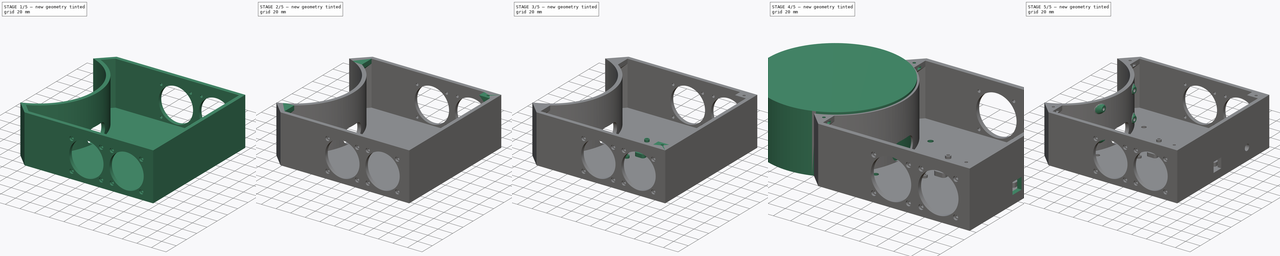
[diagram: build sequence overview — one tinted view per stage of 5, left to right]
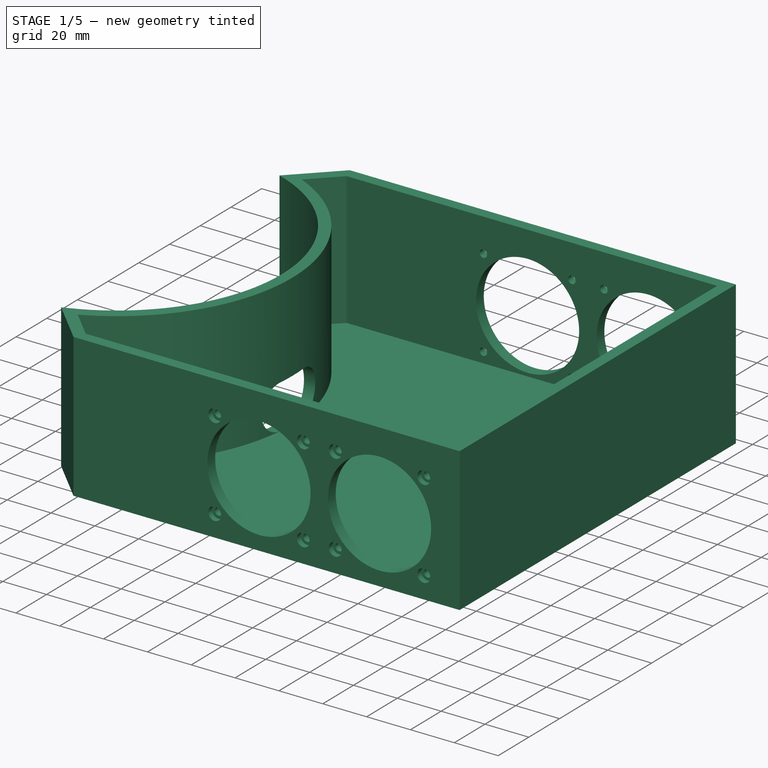
[diagram: stage 1 of 5 — iso view after this stage's code; geometry added in this stage tinted green]
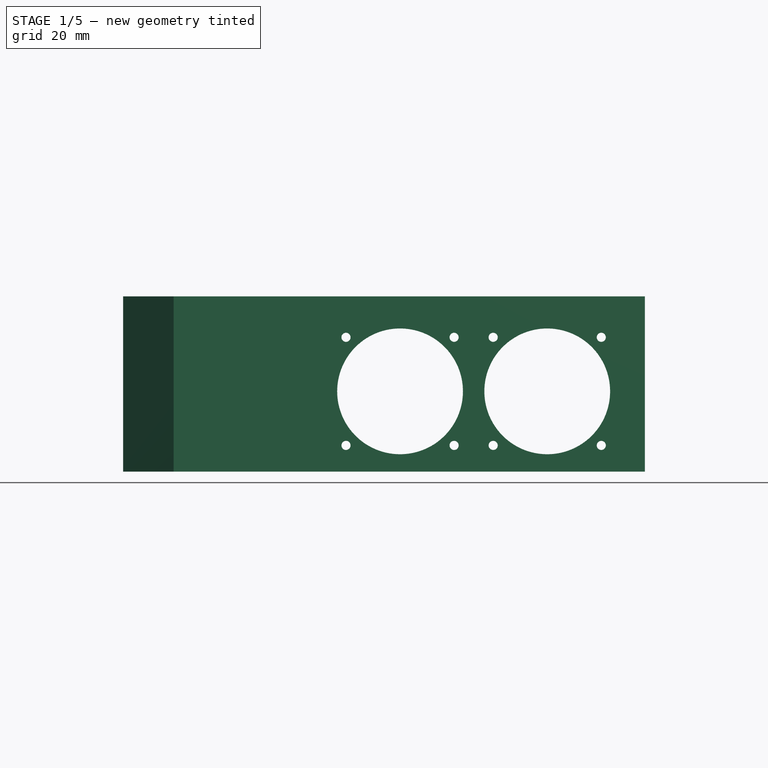
[diagram: stage 1 of 5 — front view after this stage's code; geometry added in this stage tinted green]
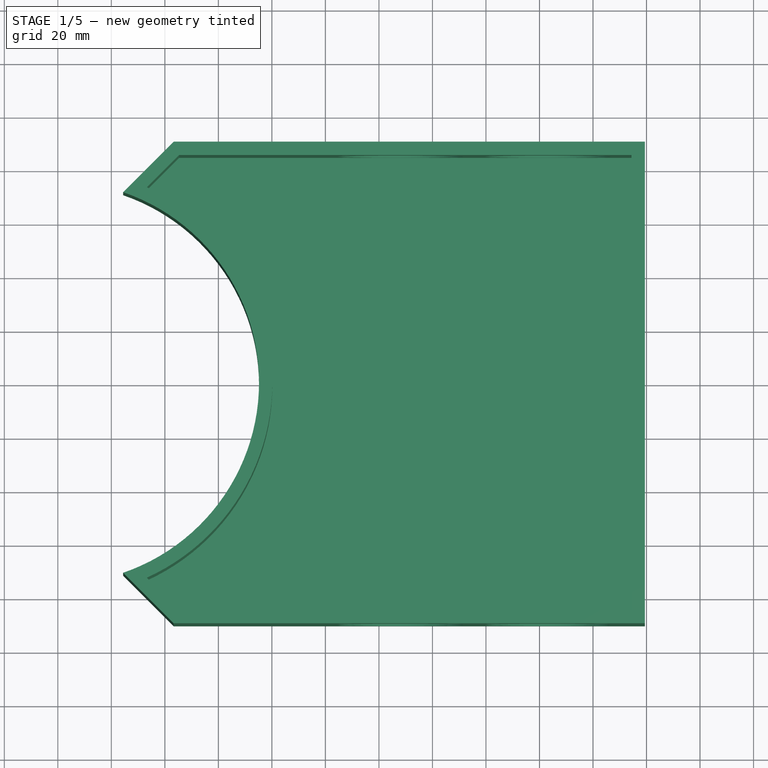
[diagram: stage 1 of 5 — top view after this stage's code; geometry added in this stage tinted green]
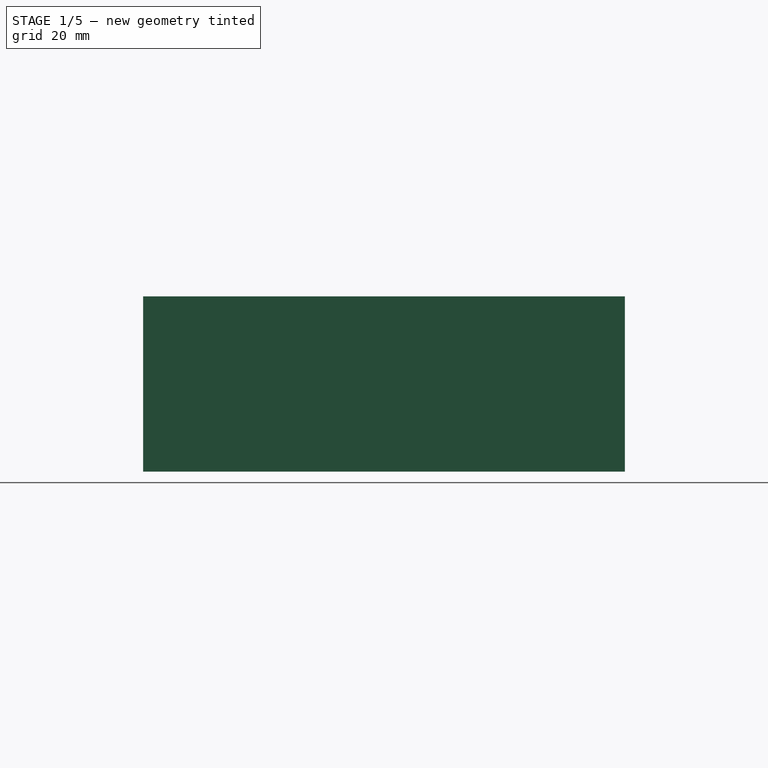
[diagram: stage 1 of 5 — right view after this stage's code; geometry added in this stage tinted green]
FCSTD DOCUMENT  (FreeCAD 0.19R24276 (Git))
Label: BaseBoxBody
License: All rights reserved
LicenseURL: http://en.wikipedia.org/wiki/All_rights_reserved
objects: PartDesign::Line×28, Sketcher::SketchObject×19, PartDesign::Pocket×12, PartDesign::CoordinateSystem×8, PartDesign::Pad×5, PartDesign::Mirrored×4, PartDesign::Body×3, PartDesign::Plane×2, PartDesign::Thickness×1, Spreadsheet::Sheet×1, PartDesign::Draft×1, PartDesign::MultiTransform×1, PartDesign::Fillet×1, PartDesign::Revolution×1, Part::FeaturePython×1, Part::Cylinder×1, Part::Cut×1, PartDesign::ShapeBinder×1, Part::MultiFuse×1, PartDesign::FeatureBase×1
note: 112 computed .brp shape members not serialized (recipe doc carries the construction recipe); baked Part::Feature solids carry a one-line shape summary decoded from their .brp

FEATURE [Sketcher::SketchObject] Sketch
  FullyConstrained = true
  MapMode = 5
  Support = -> [XY_Plane]
  sketch-geometry (6):
    g0: ArcOfCircle CenterX=0 CenterY=0 CenterZ=0 NormalX=0 NormalY=0 NormalZ=1 AngleXU=0 Radius=75.2 StartAngle=5.04284 EndAngle=7.52353
    g1: LineSegment StartX=24.4 StartY=71.1314 StartZ=0 EndX=43.2686 EndY=90 EndZ=0
    g2: LineSegment StartX=43.2686 StartY=90 StartZ=0 EndX=219.4 EndY=90 EndZ=0
    g3: LineSegment StartX=219.4 StartY=90 StartZ=0 EndX=219.4 EndY=-90 EndZ=0
    g4: LineSegment StartX=219.4 StartY=-90 StartZ=0 EndX=43.2686 EndY=-90 EndZ=0
    g5: LineSegment StartX=43.2686 StartY=-90 StartZ=0 EndX=24.4 EndY=-71.1314 EndZ=0
  constraints (17):
    c: Coincident(g0,g-1)
    c: Radius(g0) = 75.2
    c: Coincident(g0,g1)
    c: Coincident(g1,g2)
    c: Horizontal(g2)
    c: Coincident(g2,g3)
    c: Vertical(g3)
    c: Coincident(g3,g4)
    c: Coincident(g4,g5)
    c: Coincident(g5,g0)
    c: Horizontal(g4)
    c: Symmetric(g4,g1,g-1)
    c: Angle(g4,g5) = 2.35619
    c: DistanceX(g0,g3) = 195
    c: DistanceY(g3,g3) = 180
    c: DistanceX(g0,g0) = 24.4
    c: Angle(g1,g2) = 2.35619
FEATURE [PartDesign::Pad] Pad
  Direction = (1,1,1)
  Length = 65.5
  Length2 = 100
  Profile = -> Sketch
  Refine = true
  Type = 0
FEATURE [PartDesign::Thickness] Thickness
  Base = -> Pad [Face8]
  BaseFeature = -> Pad
  Intersection = false
  Join = 0
  Mode = 0
  Refine = true
  Reversed = true
  SupportTransform = false
  Value = 5
FEATURE [Sketcher::SketchObject] Sketch001
  FullyConstrained = true
  MapMode = 5
  Placement = pos=(0,0,0) rot=(0.57735,0.57735,0.57735;2.0944rad)
  Support = -> [YZ_Plane]
  sketch-geometry (4):
    g0: ArcOfCircle CenterX=7.5 CenterY=15 CenterZ=0 NormalX=0 NormalY=0 NormalZ=1 AngleXU=0 Radius=10 StartAngle=4.71239 EndAngle=7.85398
    g1: ArcOfCircle CenterX=-7.5 CenterY=15 CenterZ=0 NormalX=0 NormalY=0 NormalZ=1 AngleXU=0 Radius=10 StartAngle=1.5708 EndAngle=4.71239
    g2: LineSegment StartX=7.5 StartY=25 StartZ=0 EndX=-7.5 EndY=25 EndZ=0
    g3: LineSegment StartX=7.5 StartY=5 StartZ=0 EndX=-7.5 EndY=5 EndZ=0
  constraints (9):
    c: Tangent(g0,g3) = 1.5708
    c: Tangent(g0,g2) = -1.5708
    c: Tangent(g2,g1) = -1.5708
    c: Tangent(g3,g1) = 1.5708
    c: Horizontal(g2)
    c: Symmetric(g0,g1,g-2)
    c: DistanceX(g3,g3) = 15
    c: Radius(g0) = 10
    c: DistanceY(g-1,g1) = 5
FEATURE [PartDesign::Pocket] Pocket
  BaseFeature = -> Thickness
  Length = 100
  Length2 = 100
  Profile = -> Sketch001
  Refine = true
  Reversed = true
  Type = 0
FEATURE [Spreadsheet::Sheet] Spreadsheet
  cells = A2=M3BoltBodyRadius; B2(M3BoltBodyRadius)=1.7; A3=M3BoltHeadRadius; B3(M3BoltHeadRadius)=2.95; A4=M3NutCircumradius; B4(M3NutCircumradius)=3.35; A5=M3NutThickness; B5(M3NutThickness)=2.7; A6=M4BoltBodyRadius; B6(M4BoltBodyRadius)=2.2; A7=M6BoltBodyRadius; B7(M6BoltBodyRadius)=3; A8=M6WasherOuterRadius; B8(M6WasherOuterRadius)=7
FEATURE [Sketcher::SketchObject] Sketch002
  ExternalGeometry = -> [Pocket]
  FullyConstrained = true
  MapMode = 5
  Placement = pos=(0,90,0) rot=(0,0.707107,0.707107;3.14159rad)
  Support = -> [Pocket]
  expr: Constraints[22] = Spreadsheet.M3BoltBodyRadius
  sketch-geometry (23):
    g0: Circle CenterX=-182.9 CenterY=30 CenterZ=0 NormalX=0 NormalY=0 NormalZ=1 AngleXU=0 Radius=23.5
    g1: LineSegment StartX=-203.1 StartY=50.2 StartZ=0 EndX=-162.7 EndY=50.2 EndZ=0
    g2: LineSegment StartX=-162.7 StartY=50.2 StartZ=0 EndX=-162.7 EndY=9.8 EndZ=0
    g3: LineSegment StartX=-162.7 StartY=9.8 StartZ=0 EndX=-203.1 EndY=9.8 EndZ=0
    g4: LineSegment StartX=-203.1 StartY=9.8 StartZ=0 EndX=-203.1 EndY=50.2 EndZ=0
    g5: LineSegment StartX=-203.1 StartY=50.2 StartZ=0 EndX=-162.7 EndY=9.8 EndZ=0
    g6: LineSegment StartX=-203.1 StartY=9.8 StartZ=0 EndX=-162.7 EndY=50.2 EndZ=0
    g7: Circle CenterX=-162.7 CenterY=50.2 CenterZ=0 NormalX=0 NormalY=0 NormalZ=1 AngleXU=0 Radius=1.7
    g8: Circle CenterX=-162.7 CenterY=9.8 CenterZ=0 NormalX=0 NormalY=0 NormalZ=1 AngleXU=0 Radius=1.7
    g9: Circle CenterX=-203.1 CenterY=50.2 CenterZ=0 NormalX=0 NormalY=0 NormalZ=1 AngleXU=0 Radius=1.7
    g10: Circle CenterX=-203.1 CenterY=9.8 CenterZ=0 NormalX=0 NormalY=0 NormalZ=1 AngleXU=0 Radius=1.7
    g11: Circle CenterX=-127.9 CenterY=30 CenterZ=0 NormalX=0 NormalY=0 NormalZ=1 AngleXU=0 Radius=23.5
    g12: LineSegment StartX=-148.1 StartY=50.2 StartZ=0 EndX=-107.7 EndY=50.2 EndZ=0
    g13: LineSegment StartX=-107.7 StartY=50.2 StartZ=0 EndX=-107.7 EndY=9.8 EndZ=0
    g14: LineSegment StartX=-107.7 StartY=9.8 StartZ=0 EndX=-148.1 EndY=9.8 EndZ=0
    g15: LineSegment StartX=-148.1 StartY=9.8 StartZ=0 EndX=-148.1 EndY=50.2 EndZ=0
    g16: LineSegment StartX=-148.1 StartY=50.2 StartZ=0 EndX=-107.7 EndY=9.8 EndZ=0
    g17: LineSegment StartX=-148.1 StartY=9.8 StartZ=0 EndX=-107.7 EndY=50.2 EndZ=0
    g18: Circle CenterX=-107.7 CenterY=50.2 CenterZ=0 NormalX=0 NormalY=0 NormalZ=1 AngleXU=0 Radius=1.7
    g19: Circle CenterX=-107.7 CenterY=9.8 CenterZ=0 NormalX=0 NormalY=0 NormalZ=1 AngleXU=0 Radius=1.7
    g20: Circle CenterX=-148.1 CenterY=50.2 CenterZ=0 NormalX=0 NormalY=0 NormalZ=1 AngleXU=0 Radius=1.7
    g21: Circle CenterX=-148.1 CenterY=9.8 CenterZ=0 NormalX=0 NormalY=0 NormalZ=1 AngleXU=0 Radius=1.7
    g22: LineSegment StartX=-182.9 StartY=30 StartZ=0 EndX=-127.9 EndY=30 EndZ=0
  constraints (56):
    c: Coincident(g1,g2)
    c: Coincident(g2,g3)
    c: Coincident(g3,g4)
    c: Coincident(g4,g1)
    c: Horizontal(g1)
    c: Horizontal(g3)
    c: Vertical(g2)
    c: Vertical(g4)
    c: Coincident(g5,g1)
    c: Coincident(g5,g2)
    c: Coincident(g6,g3)
    c: Coincident(g6,g1)
    c: PointOnObject(g0,g5)
    c: PointOnObject(g0,g6)
    c: Equal(g2,g3)
    c: Coincident(g7,g1)
    c: Coincident(g8,g2)
    c: Coincident(g9,g1)
    c: Coincident(g10,g3)
    c: Equal(g10,g8)
    c: Equal(g8,g7)
    c: Equal(g7,g9)
    c: Radius(g10) = 1.7
    c: Radius(g0) = 23.5
    c: DistanceX(g3,g3) = 40.4
    c: Coincident(g12,g13)
    c: Coincident(g13,g14)
    c: Coincident(g14,g15)
    c: Coincident(g15,g12)
    c: Horizontal(g12)
    c: Horizontal(g14)
    c: Vertical(g13)
    c: Vertical(g15)
    c: Coincident(g16,g12)
    c: Coincident(g16,g13)
    c: Coincident(g17,g14)
    c: Coincident(g17,g12)
    c: PointOnObject(g11,g16)
    c: PointOnObject(g11,g17)
    c: Equal(g13,g14)
    c: Coincident(g18,g12)
    c: Coincident(g19,g13)
    c: Coincident(g20,g12)
    c: Coincident(g21,g14)
    c: Equal(g21,g19)
    c: Equal(g19,g18)
    c: Equal(g18,g20)
    c: Equal(g10,g21) = 1.7
    c: Equal(g0,g11) = 23.5
    c: Equal(g3,g14) = 40
    c: Coincident(g22,g0)
    c: Coincident(g22,g11)
    c: Horizontal(g22)
    c: DistanceX(g22,g22) = 55
    c: DistanceY(g-3,g0) = 30
    c: DistanceX(g-3,g0) = 36.5
FEATURE [PartDesign::Pocket] Pocket001
  BaseFeature = -> Pocket
  Length = 5
  Length2 = 100
  Profile = -> Sketch002
  Refine = true
  Type = 1
FEATURE [Sketcher::SketchObject] Sketch003
  ExternalGeometry = -> [Pocket001]
  FullyConstrained = true
  MapMode = 5
  Placement = pos=(0,90,0) rot=(0,0.707107,0.707107;3.14159rad)
  Support = -> [Pocket001]
  expr: Constraints[15] = Spreadsheet.M3BoltHeadRadius
  sketch-geometry (8):
    g0: Circle CenterX=-162.7 CenterY=50.2 CenterZ=0 NormalX=0 NormalY=0 NormalZ=1 AngleXU=0 Radius=2.95
    g1: Circle CenterX=-148.1 CenterY=50.2 CenterZ=0 NormalX=0 NormalY=0 NormalZ=1 AngleXU=0 Radius=2.95
    g2: Circle CenterX=-107.7 CenterY=50.2 CenterZ=0 NormalX=0 NormalY=0 NormalZ=1 AngleXU=0 Radius=2.95
    g3: Circle CenterX=-107.7 CenterY=9.8 CenterZ=0 NormalX=0 NormalY=0 NormalZ=1 AngleXU=0 Radius=2.95
    g4: Circle CenterX=-148.1 CenterY=9.8 CenterZ=0 NormalX=0 NormalY=0 NormalZ=1 AngleXU=0 Radius=2.95
    g5: Circle CenterX=-162.7 CenterY=9.8 CenterZ=0 NormalX=0 NormalY=0 NormalZ=1 AngleXU=0 Radius=2.95
    g6: Circle CenterX=-203.1 CenterY=9.8 CenterZ=0 NormalX=0 NormalY=0 NormalZ=1 AngleXU=0 Radius=2.95
    g7: Circle CenterX=-203.1 CenterY=50.2 CenterZ=0 NormalX=0 NormalY=0 NormalZ=1 AngleXU=0 Radius=2.95
  constraints (16):
    c: Coincident(g0,g-10)
    c: Coincident(g1,g-3)
    c: Coincident(g2,g-4)
    c: Coincident(g3,g-5)
    c: Coincident(g4,g-6)
    c: Coincident(g5,g-7)
    c: Coincident(g6,g-8)
    c: Coincident(g7,g-9)
    c: Equal(g4,g1)
    c: Equal(g1,g2)
    c: Equal(g2,g3)
    c: Equal(g3,g5)
    c: Equal(g5,g0)
    c: Equal(g0,g7)
    c: Equal(g7,g6)
    c: Radius(g6) = 2.95
FEATURE [PartDesign::Pocket] Pocket002
  BaseFeature = -> Pocket001
  Length = 2.5
  Length2 = 100
  Profile = -> Sketch003
  Refine = true
  Type = 0
FEATURE [PartDesign::Mirrored] Mirrored
  BaseFeature = -> Pocket002
  MirrorPlane = -> XZ_Plane
  Originals = -> [Pocket002]
  Refine = true
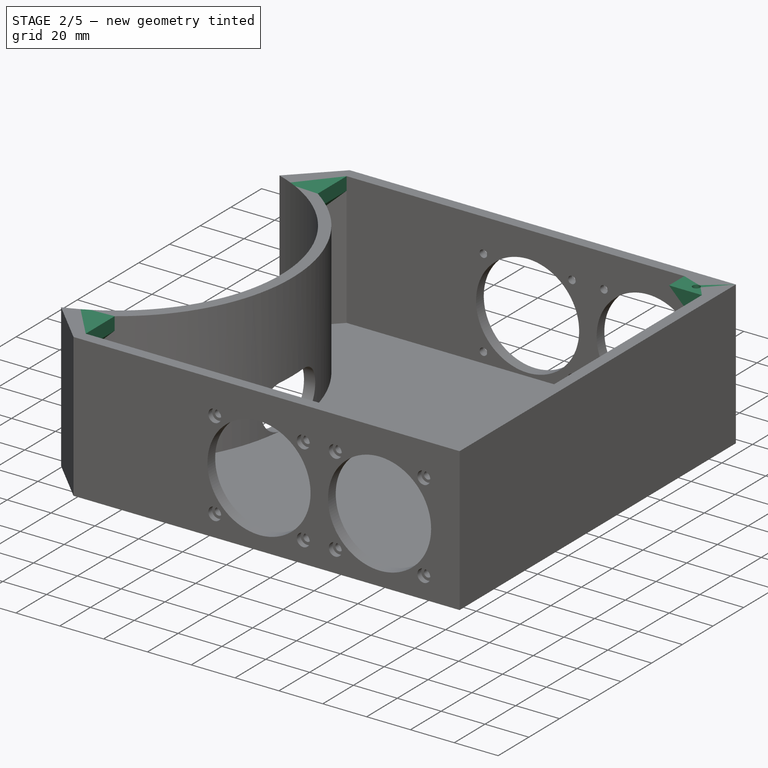
[diagram: stage 2 of 5 — iso view after this stage's code; geometry added in this stage tinted green]
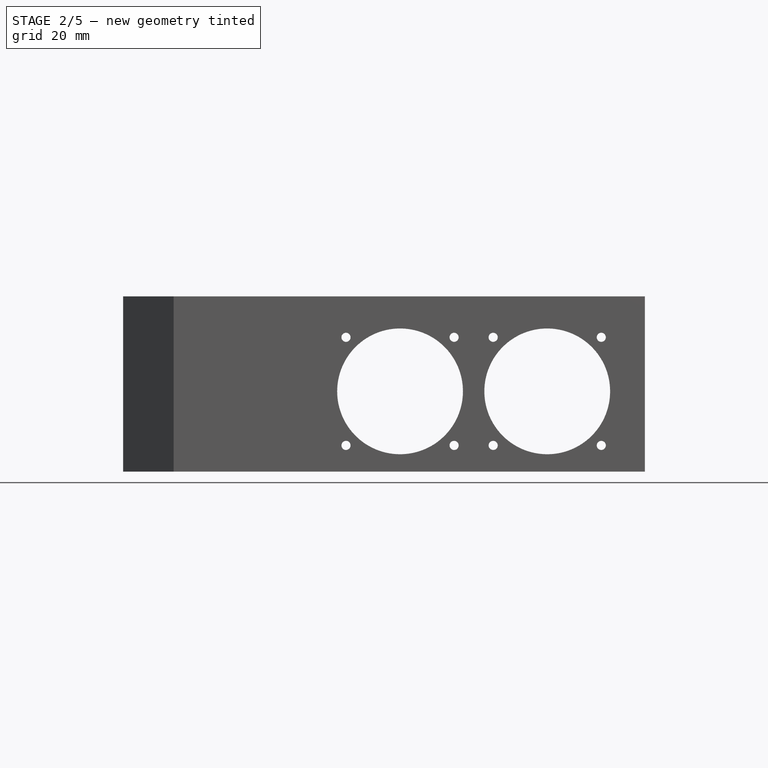
[diagram: stage 2 of 5 — front view after this stage's code; geometry added in this stage tinted green]
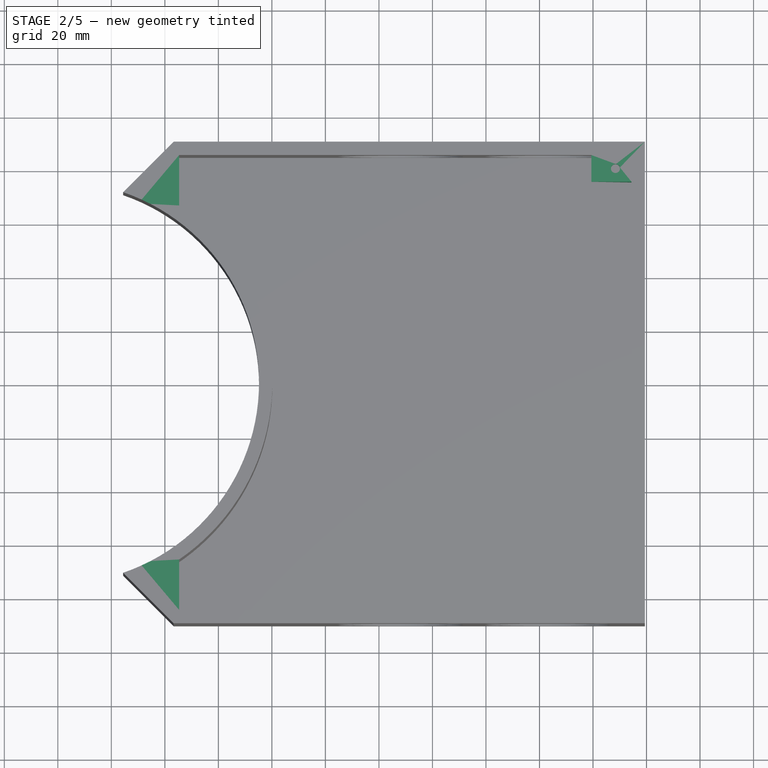
[diagram: stage 2 of 5 — top view after this stage's code; geometry added in this stage tinted green]
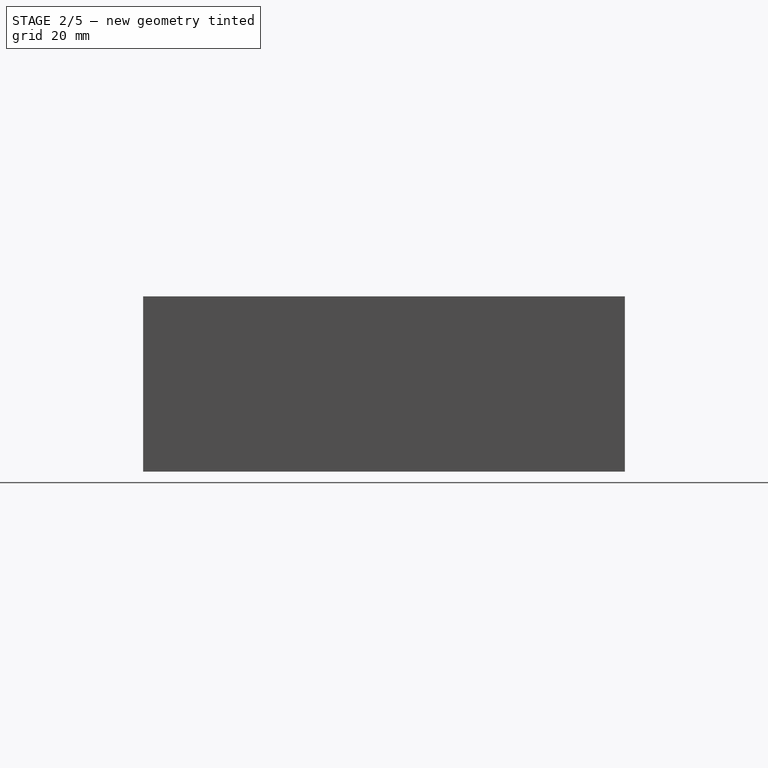
[diagram: stage 2 of 5 — right view after this stage's code; geometry added in this stage tinted green]
FEATURE [Sketcher::SketchObject] Sketch004
  ExternalGeometry = -> [Mirrored]
  FullyConstrained = true
  MapMode = 5
  Placement = pos=(0,0,65.5) rot=(0,0,1;0rad)
  Support = -> [Mirrored]
  sketch-geometry (3):
    g0: LineSegment StartX=33.2997 StartY=72.9601 StartZ=0 EndX=45.3396 EndY=85 EndZ=0
    g1: LineSegment StartX=45.3396 StartY=85 StartZ=0 EndX=45.3396 EndY=66.154 EndZ=0
    g2: ArcOfCircle CenterX=0 CenterY=0 CenterZ=0 NormalX=0 NormalY=0 NormalZ=1 AngleXU=0 Radius=80.2 StartAngle=0.96996 EndAngle=1.14262
  constraints (7):
    c: Coincident(g-3,g0)
    c: Coincident(g0,g-3)
    c: Coincident(g0,g1)
    c: Vertical(g1)
    c: Coincident(g2,g-1)
    c: Coincident(g2,g1)
    c: Coincident(g2,g0)
FEATURE [PartDesign::Pad] Pad001
  BaseFeature = -> Mirrored
  Direction = (1,1,1)
  Length = 6
  Length2 = 100
  Profile = -> Sketch004
  Refine = true
  Reversed = true
  Type = 0
FEATURE [PartDesign::Draft] Draft
  Angle = 45
  Base = -> Pad001 [Face38]
  BaseFeature = -> Pad001
  NeutralPlane = -> Pad001 [Face39]
  Refine = true
  Reversed = true
  SupportTransform = false
FEATURE [PartDesign::Mirrored] Mirrored001
  BaseFeature = -> Draft
  MirrorPlane = -> XZ_Plane
  Originals = -> [Pad001,Draft]
  Refine = true
FEATURE [Sketcher::SketchObject] Sketch005
  ExternalGeometry = -> [Mirrored001]
  FullyConstrained = true
  MapMode = 5
  Placement = pos=(0,85,0) rot=(1,0,0;1.5708rad)
  Support = -> [Mirrored001]
  sketch-geometry (3):
    g0: LineSegment StartX=214.4 StartY=65.5 StartZ=0 EndX=214.4 EndY=50.5 EndZ=0
    g1: LineSegment StartX=214.4 StartY=50.5 StartZ=0 EndX=199.4 EndY=65.5 EndZ=0
    g2: LineSegment StartX=199.4 StartY=65.5 StartZ=0 EndX=214.4 EndY=65.5 EndZ=0
  constraints (8):
    c: Coincident(g-3,g0)
    c: Vertical(g0)
    c: Coincident(g0,g1)
    c: PointOnObject(g1,g-3)
    c: Coincident(g1,g2)
    c: Coincident(g2,g0)
    c: Equal(g2,g0)
    c: DistanceX(g2,g2) = 15
FEATURE [PartDesign::Pad] Pad002
  BaseFeature = -> Mirrored001
  Direction = (1,1,1)
  Length = 10
  Length2 = 100
  Profile = -> Sketch005
  Refine = true
  Type = 0
FEATURE [Sketcher::SketchObject] Sketch006
  ExternalGeometry = -> [Pad002]
  FullyConstrained = true
  MapMode = 5
  Placement = pos=(0,0,65.5) rot=(0,0,1;0rad)
  Support = -> [Pad002]
  expr: Constraints[0] = Spreadsheet.M3BoltBodyRadius
  sketch-geometry (1):
    g0: Circle CenterX=208.4 CenterY=80 CenterZ=0 NormalX=0 NormalY=0 NormalZ=1 AngleXU=0 Radius=1.7
  constraints (3):
    c: Radius(g0) = 1.7
    c: DistanceY(g-5,g0) = 5
    c: DistanceX(g-5,g0) = 9
FEATURE [PartDesign::Pocket] Pocket003
  BaseFeature = -> Pad002
  Length = 5
  Length2 = 100
  Profile = -> Sketch006
  Refine = true
  Type = 2
FEATURE [PartDesign::Plane] DatumPlane
  AttachmentOffset = pos=(0,0,-3.85) rot=(0,0,1;0rad)
  Length = 60
  MapMode = 5
  Placement = pos=(0,0,61.65) rot=(0,0,1;0rad)
  ResizeMode = 0
  Support = -> [Pocket003]
  Width = 60
FEATURE [Sketcher::SketchObject] Sketch007
  ExternalGeometry = -> [Pocket003]
  FullyConstrained = true
  MapMode = 5
  Placement = pos=(0,0,61.65) rot=(0,0,1;0rad)
  Support = -> [DatumPlane]
  expr: Constraints[19] = Spreadsheet.M3NutCircumradius
  sketch-geometry (10):
    g0: LineSegment StartX=211.75 StartY=80 StartZ=0 EndX=210.075 EndY=82.9012 EndZ=0
    g1: LineSegment StartX=210.075 StartY=82.9012 StartZ=0 EndX=206.725 EndY=82.9012 EndZ=0
    g2: LineSegment StartX=206.725 StartY=82.9012 StartZ=0 EndX=205.05 EndY=80 EndZ=0
    g3: LineSegment StartX=205.05 StartY=80 StartZ=0 EndX=206.725 EndY=77.0988 EndZ=0
    g4: LineSegment StartX=206.725 StartY=77.0988 StartZ=0 EndX=210.075 EndY=77.0988 EndZ=0
    g5: LineSegment StartX=210.075 StartY=77.0988 StartZ=0 EndX=211.75 EndY=80 EndZ=0
    g6: Circle CenterX=208.4 CenterY=80 CenterZ=0 NormalX=0 NormalY=0 NormalZ=1 AngleXU=0 Radius=3.35
    g7: LineSegment StartX=210.075 StartY=82.9012 StartZ=0 EndX=195.075 EndY=82.9012 EndZ=0
    g8: LineSegment StartX=195.075 StartY=82.9012 StartZ=0 EndX=195.075 EndY=77.0988 EndZ=0
    g9: LineSegment StartX=195.075 StartY=77.0988 StartZ=0 EndX=210.075 EndY=77.0988 EndZ=0
  constraints (24):
    c: Coincident(g0,g1)
    c: Coincident(g1,g2)
    c: Coincident(g2,g3)
    c: Coincident(g3,g4)
    c: Coincident(g4,g5)
    c: Coincident(g5,g0)
    c: Equal(g0, g1-g5) x5
    c: PointOnObject(g0,g6)
    c: PointOnObject(g1,g6)
    c: PointOnObject(g2,g6)
    c: PointOnObject(g3,g6)
    c: PointOnObject(g4,g6)
    c: PointOnObject(g5,g6)
    c: Coincident(g6,g-3)
    c: Horizontal(g4)
    c: Radius(g6) = 3.35
    c: Coincident(g0,g7)
    c: Horizontal(g7)
    c: Coincident(g7,g8)
    c: Vertical(g8)
    c: Coincident(g8,g9)
    c: Coincident(g9,g5)
    c: Horizontal(g9)
    c: DistanceX(g9,g9) = 15
FEATURE [PartDesign::Pocket] Pocket004
  BaseFeature = -> Pocket003
  Length = 2.7
  Length2 = 100
  Midplane = true
  Profile = -> Sketch007
  Refine = true
  Type = 0
  expr: Length = Spreadsheet.M3NutThickness
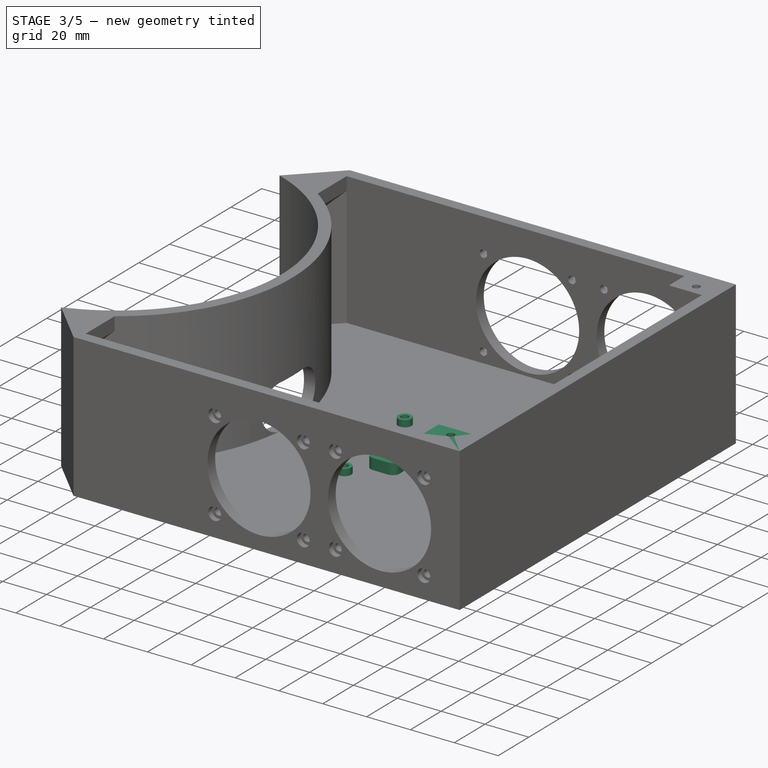
[diagram: stage 3 of 5 — iso view after this stage's code; geometry added in this stage tinted green]
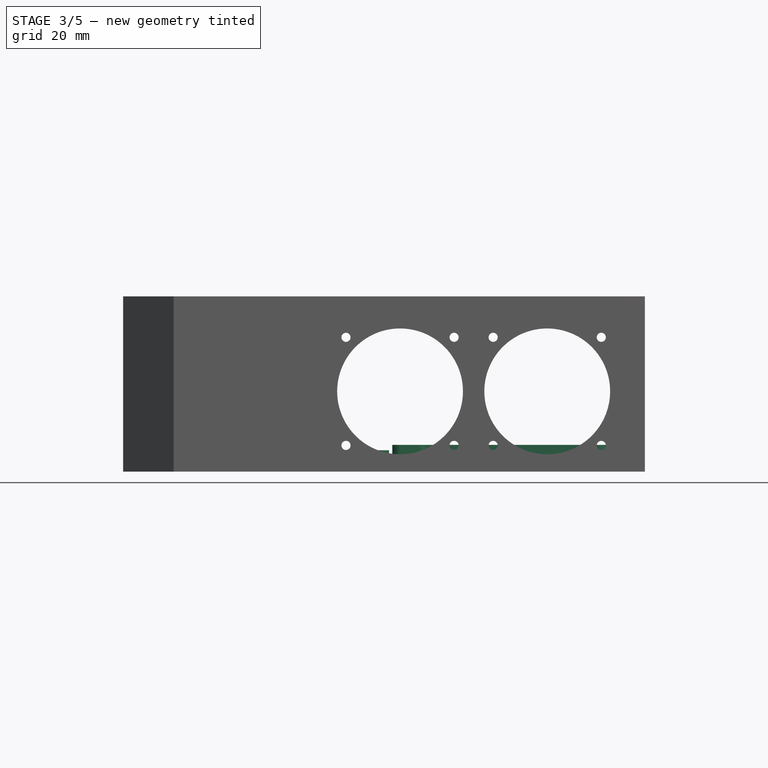
[diagram: stage 3 of 5 — front view after this stage's code; geometry added in this stage tinted green]
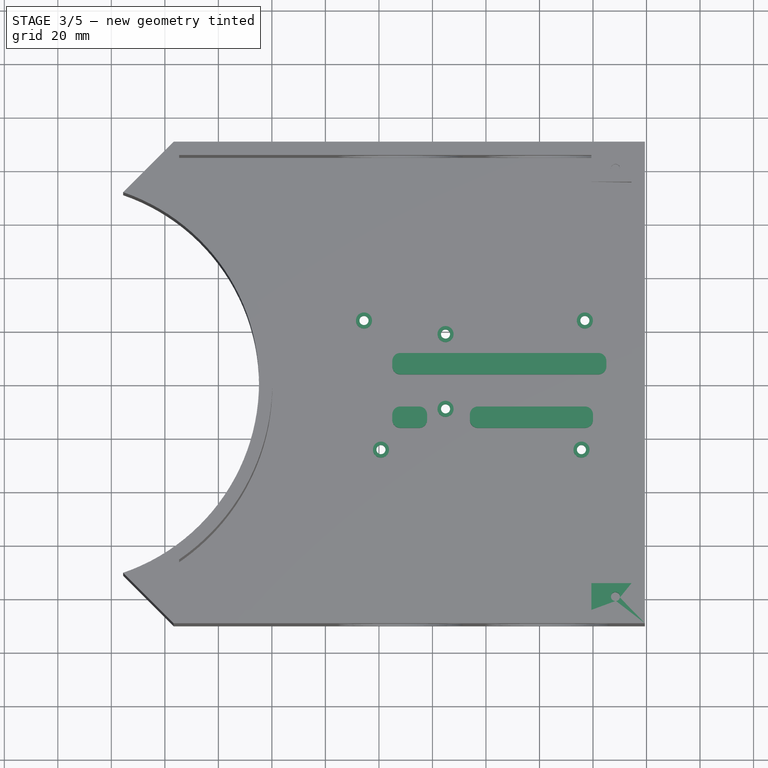
[diagram: stage 3 of 5 — top view after this stage's code; geometry added in this stage tinted green]
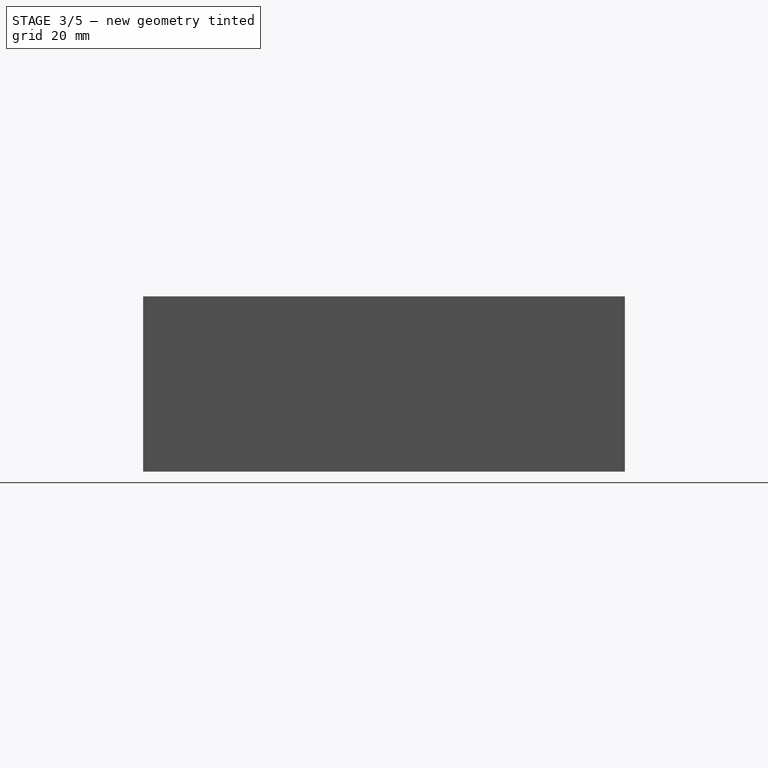
[diagram: stage 3 of 5 — right view after this stage's code; geometry added in this stage tinted green]
FEATURE [PartDesign::Mirrored] Mirrored002
  MirrorPlane = -> XZ_Plane
  Refine = true
FEATURE [PartDesign::MultiTransform] MultiTransform
  BaseFeature = -> Pocket004
  Originals = -> [Pad002,Pocket003,Pocket004]
  Refine = true
  Transformations = -> [Mirrored002]
FEATURE [Sketcher::SketchObject] Sketch008
  ExternalGeometry = -> [MultiTransform]
  FullyConstrained = true
  MapMode = 5
  Placement = pos=(0,0,5) rot=(0,0,1;0rad)
  Support = -> [MultiTransform]
  sketch-geometry (12):
    g0: LineSegment StartX=154 StartY=-8 StartZ=0 EndX=200 EndY=-8 EndZ=0
    g1: LineSegment StartX=200 StartY=-8 StartZ=0 EndX=200 EndY=-16 EndZ=0
    g2: LineSegment StartX=200 StartY=-16 StartZ=0 EndX=154 EndY=-16 EndZ=0
    g3: LineSegment StartX=154 StartY=-16 StartZ=0 EndX=154 EndY=-8 EndZ=0
    g4: LineSegment StartX=125 StartY=12 StartZ=0 EndX=205 EndY=12 EndZ=0
    g5: LineSegment StartX=205 StartY=12 StartZ=0 EndX=205 EndY=4 EndZ=0
    g6: LineSegment StartX=205 StartY=4 StartZ=0 EndX=125 EndY=4 EndZ=0
    g7: LineSegment StartX=125 StartY=4 StartZ=0 EndX=125 EndY=12 EndZ=0
    g8: LineSegment StartX=125 StartY=-8 StartZ=0 EndX=138 EndY=-8 EndZ=0
    g9: LineSegment StartX=138 StartY=-8 StartZ=0 EndX=138 EndY=-16 EndZ=0
    g10: LineSegment StartX=138 StartY=-16 StartZ=0 EndX=125 EndY=-16 EndZ=0
    g11: LineSegment StartX=125 StartY=-16 StartZ=0 EndX=125 EndY=-8 EndZ=0
  constraints (36):
    c: Coincident(g0,g1)
    c: Coincident(g1,g2)
    c: Coincident(g2,g3)
    c: Coincident(g3,g0)
    c: Horizontal(g0)
    c: Horizontal(g2)
    c: Vertical(g1)
    c: Vertical(g3)
    c: Coincident(g4,g5)
    c: Coincident(g5,g6)
    c: Coincident(g6,g7)
    c: Coincident(g7,g4)
    c: Horizontal(g4)
    c: Horizontal(g6)
    c: Vertical(g5)
    c: Vertical(g7)
    c: Coincident(g8,g9)
    c: Coincident(g9,g10)
    c: Coincident(g10,g11)
    c: Coincident(g11,g8)
    c: Horizontal(g8)
    c: Horizontal(g10)
    c: Vertical(g9)
    c: Vertical(g11)
    c: Equal(g9,g3)
    c: Equal(g3,g7)
    c: DistanceY(g3,g3) = 8
    c: DistanceX(g1,g-3) = 19.4
    c: DistanceX(g2,g2) = 46
    c: DistanceX(g9,g2) = 16
    c: PointOnObject(g9,g2)
    c: DistanceX(g10,g10) = 13
    c: DistanceY(g-3,g1) = 74
    c: DistanceX(g6,g6) = 80
    c: DistanceY(g0,g5) = 12
    c: DistanceX(g5,g-3) = 14.4
FEATURE [PartDesign::Pad] Pad003
  BaseFeature = -> MultiTransform
  Direction = (1,1,1)
  Length = 5
  Length2 = 100
  Profile = -> Sketch008
  Refine = true
  Type = 0
FEATURE [PartDesign::Fillet] Fillet
  Base = -> Pad003 [Edge174,Edge176,Edge171,Edge172,Edge187,Edge188,Edge180,Edge179,Edge182,Edge190,Edge192,Edge184]
  BaseFeature = -> Pad003
  Radius = 3
  Refine = true
  SupportTransform = false
FEATURE [Sketcher::SketchObject] Sketch009
  ExternalGeometry = -> [Fillet]
  FullyConstrained = true
  MapMode = 5
  Placement = pos=(0,0,5) rot=(0,0,1;0rad)
  Support = -> [Fillet]
  sketch-geometry (10):
    g0: Circle CenterX=195.696 CenterY=-24.084 CenterZ=0 NormalX=0 NormalY=0 NormalZ=1 AngleXU=0 Radius=3
    g1: Circle CenterX=196.966 CenterY=24.1801 CenterZ=0 NormalX=0 NormalY=0 NormalZ=1 AngleXU=0 Radius=3
    g2: Circle CenterX=144.9 CenterY=19.1 CenterZ=0 NormalX=0 NormalY=0 NormalZ=1 AngleXU=0 Radius=3
    g3: Circle CenterX=144.9 CenterY=-8.844 CenterZ=0 NormalX=0 NormalY=0 NormalZ=1 AngleXU=0 Radius=3
    g4: Circle CenterX=114.42 CenterY=24.1801 CenterZ=0 NormalX=0 NormalY=0 NormalZ=1 AngleXU=0 Radius=3
    g5: Circle CenterX=120.766 CenterY=-24.084 CenterZ=0 NormalX=0 NormalY=0 NormalZ=1 AngleXU=0 Radius=3
    g6: LineSegment StartX=109.128 StartY=26.7575 StartZ=0 EndX=210.728 EndY=26.7575 EndZ=0
    g7: LineSegment StartX=210.728 StartY=26.7575 StartZ=0 EndX=210.728 EndY=-26.5825 EndZ=0
    g8: LineSegment StartX=210.728 StartY=-26.5825 StartZ=0 EndX=109.128 EndY=-26.5825 EndZ=0
    g9: LineSegment StartX=109.128 StartY=-26.5825 StartZ=0 EndX=109.128 EndY=26.7575 EndZ=0
  constraints (30):
    c: Equal(g5,g4)
    c: Equal(g4,g2)
    c: Equal(g2,g3)
    c: Equal(g3,g0)
    c: Equal(g0,g1)
    c: Coincident(g6,g7)
    c: Coincident(g7,g8)
    c: Coincident(g8,g9)
    c: Coincident(g9,g6)
    c: Horizontal(g6)
    c: Horizontal(g8)
    c: Vertical(g7)
    c: Vertical(g9)
    c: DistanceY(g9,g9) = 53.34
    c: DistanceX(g8,g8) = 101.6
    c: Radius(g5) = 3
    c: DistanceX(g0,g7) = 15.0311
    c: DistanceY(g0,g5) = 0
    c: DistanceY(g4,g1) = 0
    c: DistanceX(g5,g7) = 89.9615
    c: DistanceY(g7,g0) = 2.4985
    c: DistanceX(g3,g7) = 65.8275
    c: DistanceX(g2,g3) = 0
    c: DistanceY(g7,g3) = 17.7385
    c: DistanceY(g7,g1) = 50.7626
    c: DistanceY(g7,g2) = 45.6825
    c: DistanceX(g4,g7) = 96.3075
    c: DistanceX(g1,g7) = 13.7615
    c: DistanceY(g-3,g7) = 63.4175
    c: DistanceX(g7,g-3) = 8.6725
FEATURE [PartDesign::Pad] Pad004
  BaseFeature = -> Fillet
  Direction = (1,1,1)
  Length = 3
  Length2 = 100
  Profile = -> Sketch009
  Refine = true
  Type = 0
FEATURE [Sketcher::SketchObject] Sketch010
  ExternalGeometry = -> [Pad004]
  FullyConstrained = true
  MapMode = 5
  Placement = pos=(0,0,8) rot=(0,0,1;0rad)
  Support = -> [Pad004]
  expr: Constraints[11] = Spreadsheet.M3BoltBodyRadius
  sketch-geometry (6):
    g0: Circle CenterX=114.42 CenterY=24.1801 CenterZ=0 NormalX=0 NormalY=0 NormalZ=1 AngleXU=0 Radius=1.7
    g1: Circle CenterX=144.9 CenterY=19.1 CenterZ=0 NormalX=0 NormalY=0 NormalZ=1 AngleXU=0 Radius=1.7
    g2: Circle CenterX=196.966 CenterY=24.1801 CenterZ=0 NormalX=0 NormalY=0 NormalZ=1 AngleXU=0 Radius=1.7
    g3: Circle CenterX=144.9 CenterY=-8.844 CenterZ=0 NormalX=0 NormalY=0 NormalZ=1 AngleXU=0 Radius=1.7
    g4: Circle CenterX=120.766 CenterY=-24.084 CenterZ=0 NormalX=0 NormalY=0 NormalZ=1 AngleXU=0 Radius=1.7
    g5: Circle CenterX=195.696 CenterY=-24.084 CenterZ=0 NormalX=0 NormalY=0 NormalZ=1 AngleXU=0 Radius=1.7
  constraints (12):
    c: Coincident(g0,g-5)
    c: Coincident(g1,g-4)
    c: Coincident(g2,g-3)
    c: Coincident(g3,g-6)
    c: Coincident(g4,g-7)
    c: Coincident(g5,g-8)
    c: Equal(g5,g3)
    c: Equal(g3,g4)
    c: Equal(g4,g1)
    c: Equal(g1,g0)
    c: Equal(g0,g2)
    c: Radius(g1) = 1.7
FEATURE [PartDesign::Pocket] Pocket005
  BaseFeature = -> Pad004
  Length = 5
  Length2 = 100
  Profile = -> Sketch010
  Refine = true
  Type = 1
FEATURE [Sketcher::SketchObject] Sketch011
  ExternalGeometry = -> [Pocket005]
  FullyConstrained = true
  MapMode = 5
  Placement = pos=(0,0,0) rot=(1,0,0;3.14159rad)
  Support = -> [Pocket005]
  expr: Constraints[119] = Spreadsheet.M3NutCircumradius
  sketch-geometry (42):
    g0: LineSegment StartX=122.441 StartY=21.1828 StartZ=0 EndX=124.116 EndY=24.084 EndZ=0
    g1: LineSegment StartX=124.116 StartY=24.084 StartZ=0 EndX=122.441 EndY=26.9852 EndZ=0
    g2: LineSegment StartX=122.441 StartY=26.9852 StartZ=0 EndX=119.091 EndY=26.9852 EndZ=0
    g3: LineSegment StartX=119.091 StartY=26.9852 StartZ=0 EndX=117.416 EndY=24.084 EndZ=0
    g4: LineSegment StartX=117.416 StartY=24.084 StartZ=0 EndX=119.091 EndY=21.1828 EndZ=0
    g5: LineSegment StartX=119.091 StartY=21.1828 StartZ=0 EndX=122.441 EndY=21.1828 EndZ=0
    g6: Circle CenterX=120.766 CenterY=24.084 CenterZ=0 NormalX=0 NormalY=0 NormalZ=1 AngleXU=0 Radius=3.35
    g7: LineSegment StartX=146.575 StartY=5.94281 StartZ=0 EndX=148.25 EndY=8.844 EndZ=0
    g8: LineSegment StartX=148.25 StartY=8.844 StartZ=0 EndX=146.575 EndY=11.7452 EndZ=0
    g9: LineSegment StartX=146.575 StartY=11.7452 StartZ=0 EndX=143.225 EndY=11.7452 EndZ=0
    g10: LineSegment StartX=143.225 StartY=11.7452 StartZ=0 EndX=141.55 EndY=8.844 EndZ=0
    g11: LineSegment StartX=141.55 StartY=8.844 StartZ=0 EndX=143.225 EndY=5.94281 EndZ=0
    g12: LineSegment StartX=143.225 StartY=5.94281 StartZ=0 EndX=146.575 EndY=5.94281 EndZ=0
    g13: Circle CenterX=144.9 CenterY=8.844 CenterZ=0 NormalX=0 NormalY=0 NormalZ=1 AngleXU=0 Radius=3.35
    g14: LineSegment StartX=146.575 StartY=-22.0012 StartZ=0 EndX=148.25 EndY=-19.1 EndZ=0
    g15: LineSegment StartX=148.25 StartY=-19.1 StartZ=0 EndX=146.575 EndY=-16.1988 EndZ=0
    g16: LineSegment StartX=146.575 StartY=-16.1988 StartZ=0 EndX=143.225 EndY=-16.1988 EndZ=0
    g17: LineSegment StartX=143.225 StartY=-16.1988 StartZ=0 EndX=141.55 EndY=-19.1 EndZ=0
    g18: LineSegment StartX=141.55 StartY=-19.1 StartZ=0 EndX=143.225 EndY=-22.0012 EndZ=0
    g19: LineSegment StartX=143.225 StartY=-22.0012 StartZ=0 EndX=146.575 EndY=-22.0012 EndZ=0
    g20: Circle CenterX=144.9 CenterY=-19.1 CenterZ=0 NormalX=0 NormalY=0 NormalZ=1 AngleXU=0 Radius=3.35
    g21: LineSegment StartX=116.095 StartY=-27.0813 StartZ=0 EndX=117.77 EndY=-24.1801 EndZ=0
    g22: LineSegment StartX=117.77 StartY=-24.1801 StartZ=0 EndX=116.095 EndY=-21.2789 EndZ=0
    g23: LineSegment StartX=116.095 StartY=-21.2789 StartZ=0 EndX=112.745 EndY=-21.2789 EndZ=0
    g24: LineSegment StartX=112.745 StartY=-21.2789 StartZ=0 EndX=111.07 EndY=-24.1801 EndZ=0
    g25: LineSegment StartX=111.07 StartY=-24.1801 StartZ=0 EndX=112.745 EndY=-27.0813 EndZ=0
    g26: LineSegment StartX=112.745 StartY=-27.0813 StartZ=0 EndX=116.095 EndY=-27.0813 EndZ=0
    g27: Circle CenterX=114.42 CenterY=-24.1801 CenterZ=0 NormalX=0 NormalY=0 NormalZ=1 AngleXU=0 Radius=3.35
    g28: LineSegment StartX=198.641 StartY=-27.0813 StartZ=0 EndX=200.316 EndY=-24.1801 EndZ=0
    g29: LineSegment StartX=200.316 StartY=-24.1801 StartZ=0 EndX=198.641 EndY=-21.2789 EndZ=0
    g30: LineSegment StartX=198.641 StartY=-21.2789 StartZ=0 EndX=195.291 EndY=-21.2789 EndZ=0
    g31: LineSegment StartX=195.291 StartY=-21.2789 StartZ=0 EndX=193.616 EndY=-24.1801 EndZ=0
    g32: LineSegment StartX=193.616 StartY=-24.1801 StartZ=0 EndX=195.291 EndY=-27.0813 EndZ=0
    g33: LineSegment StartX=195.291 StartY=-27.0813 StartZ=0 EndX=198.641 EndY=-27.0813 EndZ=0
    g34: Circle CenterX=196.966 CenterY=-24.1801 CenterZ=0 NormalX=0 NormalY=0 NormalZ=1 AngleXU=0 Radius=3.35
    g35: LineSegment StartX=197.371 StartY=21.1828 StartZ=0 EndX=199.046 EndY=24.084 EndZ=0
    g36: LineSegment StartX=199.046 StartY=24.084 StartZ=0 EndX=197.371 EndY=26.9852 EndZ=0
    g37: LineSegment StartX=197.371 StartY=26.9852 StartZ=0 EndX=194.021 EndY=26.9852 EndZ=0
    g38: LineSegment StartX=194.021 StartY=26.9852 StartZ=0 EndX=192.346 EndY=24.084 EndZ=0
    g39: LineSegment StartX=192.346 StartY=24.084 StartZ=0 EndX=194.021 EndY=21.1828 EndZ=0
    g40: LineSegment StartX=194.021 StartY=21.1828 StartZ=0 EndX=197.371 EndY=21.1828 EndZ=0
    g41: Circle CenterX=195.696 CenterY=24.084 CenterZ=0 NormalX=0 NormalY=0 NormalZ=1 AngleXU=0 Radius=3.35
  constraints (96):
    c: Coincident(g0,g1)
    c: Coincident(g1,g2)
    c: Coincident(g2,g3)
    c: Coincident(g3,g4)
    c: Coincident(g4,g5)
    c: Coincident(g5,g0)
    c: Equal(g0, g1-g5) x5
    c: PointOnObject(g0,g6)
    c: PointOnObject(g1,g6)
    c: PointOnObject(g2,g6)
    c: PointOnObject(g3,g6)
    c: PointOnObject(g4,g6)
    c: PointOnObject(g5,g6)
    c: Coincident(g6,g-3)
    c: Coincident(g7,g8)
    c: Coincident(g8,g9)
    c: Coincident(g9,g10)
    c: Coincident(g10,g11)
    c: Coincident(g11,g12)
    c: Coincident(g12,g7)
    c: Equal(g7, g8-g12) x5
    c: PointOnObject(g7,g13)
    c: PointOnObject(g8,g13)
    c: PointOnObject(g9,g13)
    c: PointOnObject(g10,g13)
    c: PointOnObject(g11,g13)
    c: PointOnObject(g12,g13)
    c: Coincident(g13,g-4)
    c: Coincident(g14,g15)
    c: Coincident(g15,g16)
    c: Coincident(g16,g17)
    c: Coincident(g17,g18)
    c: Coincident(g18,g19)
    c: Coincident(g19,g14)
    c: Equal(g14, g15-g19) x5
    c: PointOnObject(g14,g20)
    c: PointOnObject(g15,g20)
    c: PointOnObject(g16,g20)
    c: PointOnObject(g17,g20)
    c: PointOnObject(g18,g20)
    c: PointOnObject(g19,g20)
    c: Coincident(g20,g-5)
    c: Coincident(g21,g22)
    c: Coincident(g22,g23)
    c: Coincident(g23,g24)
    c: Coincident(g24,g25)
    c: Coincident(g25,g26)
    c: Coincident(g26,g21)
    c: Equal(g21, g22-g26) x5
    c: PointOnObject(g21,g27)
    c: PointOnObject(g22,g27)
    c: PointOnObject(g23,g27)
    c: PointOnObject(g24,g27)
    c: PointOnObject(g25,g27)
    c: PointOnObject(g26,g27)
    c: Coincident(g27,g-6)
    c: Coincident(g28,g29)
    c: Coincident(g29,g30)
    c: Coincident(g30,g31)
    c: Coincident(g31,g32)
    c: Coincident(g32,g33)
    c: Coincident(g33,g28)
    c: Equal(g28, g29-g33) x5
    c: PointOnObject(g28,g34)
    c: PointOnObject(g29,g34)
    c: PointOnObject(g30,g34)
    c: PointOnObject(g31,g34)
    c: PointOnObject(g32,g34)
    c: PointOnObject(g33,g34)
    c: Coincident(g34,g-7)
    c: Coincident(g35,g36)
    c: Coincident(g36,g37)
    c: Coincident(g37,g38)
    c: Coincident(g38,g39)
    c: Coincident(g39,g40)
    c: Coincident(g40,g35)
    c: Equal(g35, g36-g40) x5
    c: PointOnObject(g35,g41)
    c: PointOnObject(g36,g41)
    c: PointOnObject(g37,g41)
    c: PointOnObject(g38,g41)
    c: PointOnObject(g39,g41)
    c: PointOnObject(g40,g41)
    c: Coincident(g41,g-8)
    c: Horizontal(g2)
    c: Horizontal(g9)
    c: Horizontal(g37)
    c: Horizontal(g23)
    c: Horizontal(g16)
    c: Horizontal(g30)
    c: Equal(g27,g20)
    c: Equal(g20,g13)
    c: Equal(g13,g6)
    c: Equal(g6,g34)
    c: Equal(g34,g41)
    c: Radius(g41) = 3.35
FEATURE [PartDesign::Pocket] Pocket006
  BaseFeature = -> Pocket005
  Length = 4
  Length2 = 100
  Profile = -> Sketch011
  Refine = true
  Type = 0
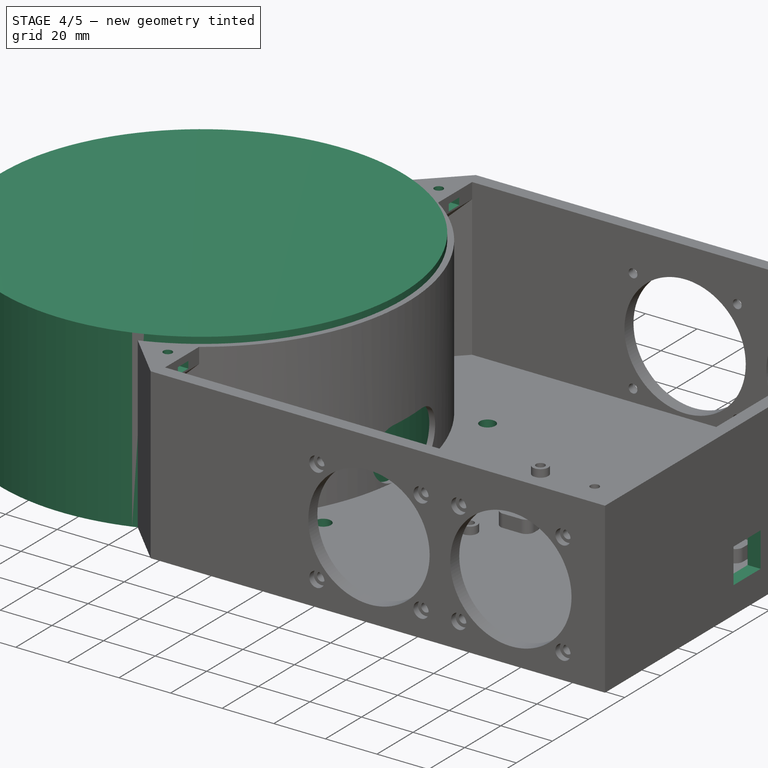
[diagram: stage 4 of 5 — iso view after this stage's code; geometry added in this stage tinted green]
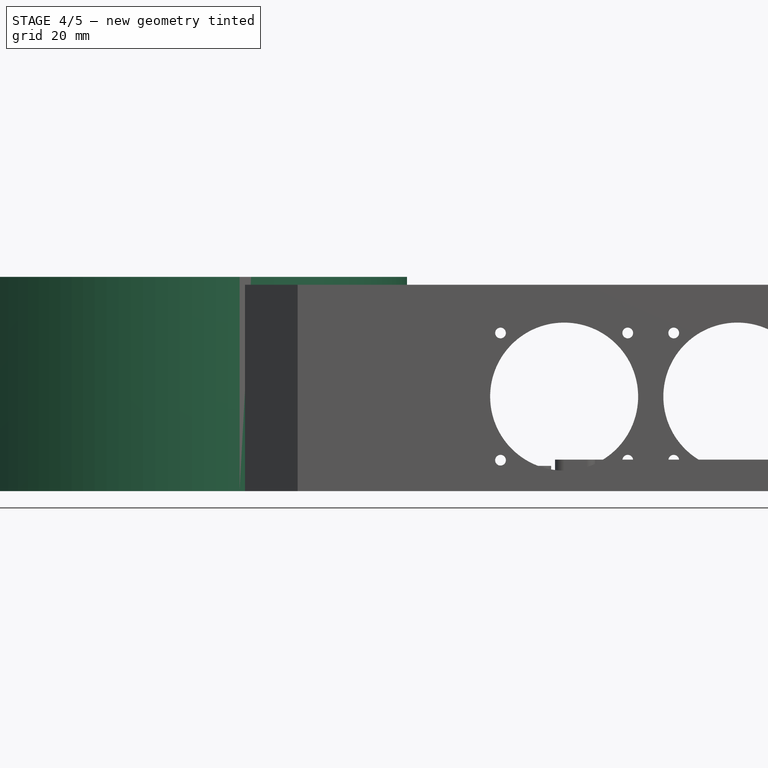
[diagram: stage 4 of 5 — front view after this stage's code; geometry added in this stage tinted green]
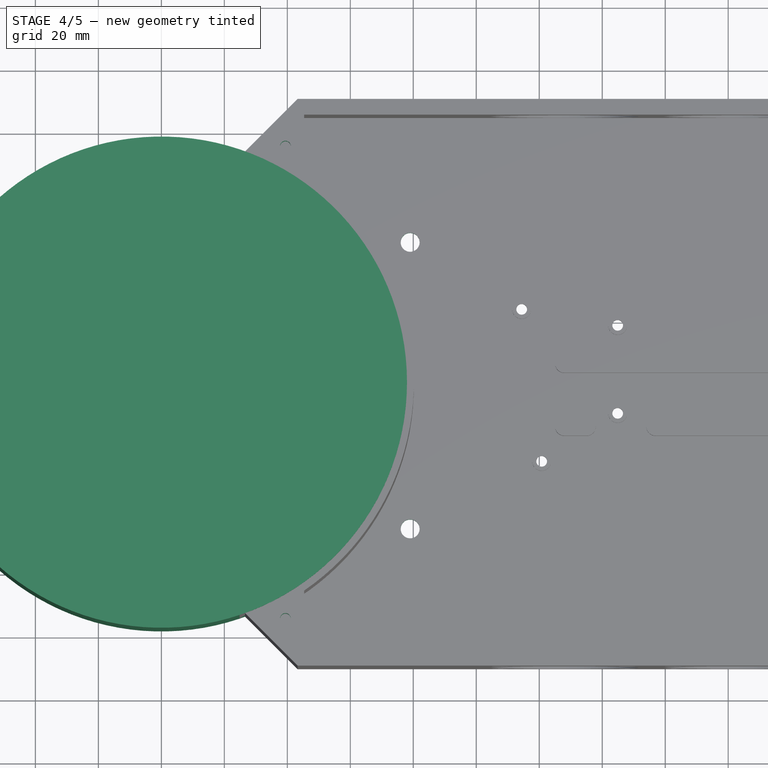
[diagram: stage 4 of 5 — top view after this stage's code; geometry added in this stage tinted green]
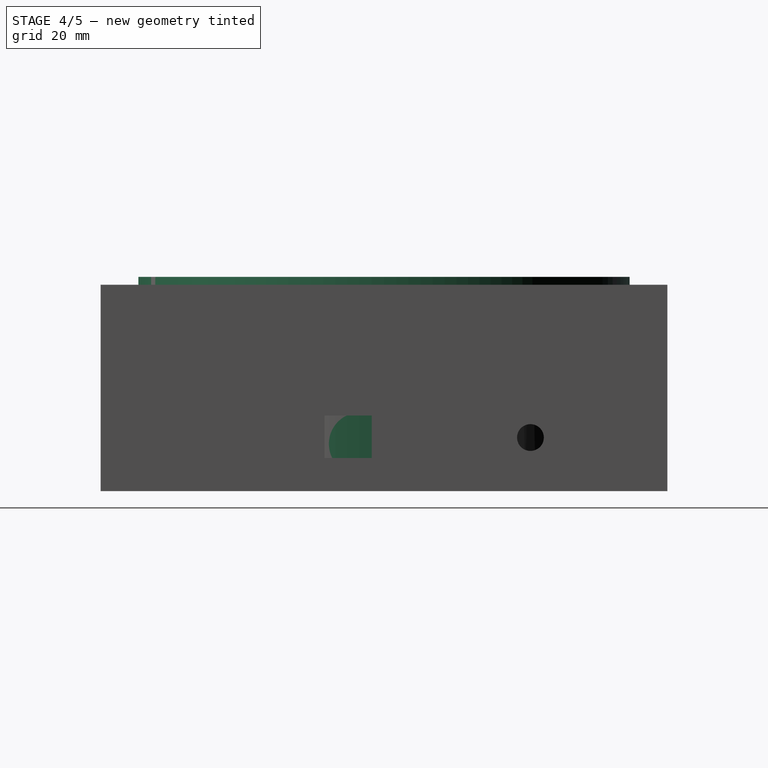
[diagram: stage 4 of 5 — right view after this stage's code; geometry added in this stage tinted green]
FEATURE [Sketcher::SketchObject] Sketch012
  ExternalGeometry = -> [Pocket006]
  FullyConstrained = true
  MapMode = 5
  Placement = pos=(219.4,0,0) rot=(0.57735,0.57735,0.57735;2.0944rad)
  Support = -> [Pocket006]
  sketch-geometry (5):
    g0: LineSegment StartX=-18.89 StartY=24 StartZ=0 EndX=-3.89 EndY=24 EndZ=0
    g1: LineSegment StartX=-3.89 StartY=24 StartZ=0 EndX=-3.89 EndY=10.5 EndZ=0
    g2: LineSegment StartX=-3.89 StartY=10.5 StartZ=0 EndX=-18.89 EndY=10.5 EndZ=0
    g3: LineSegment StartX=-18.89 StartY=10.5 StartZ=0 EndX=-18.89 EndY=24 EndZ=0
    g4: Circle CenterX=46.5 CenterY=17 CenterZ=0 NormalX=0 NormalY=0 NormalZ=1 AngleXU=0 Radius=4.25
  constraints (15):
    c: Coincident(g0,g1)
    c: Coincident(g1,g2)
    c: Coincident(g2,g3)
    c: Coincident(g3,g0)
    c: Horizontal(g0)
    c: Horizontal(g2)
    c: Vertical(g1)
    c: Vertical(g3)
    c: DistanceX(g2,g2) = 15
    c: DistanceY(g1,g1) = 13.5
    c: DistanceX(g-3,g2) = 71.11
    c: DistanceY(g-3,g2) = 10.5
    c: Radius(g4) = 4.25
    c: DistanceY(g-1,g4) = 17
    c: DistanceX(g-1,g4) = 46.5
FEATURE [PartDesign::Pocket] Pocket007
  BaseFeature = -> Pocket006
  Length = 5
  Length2 = 100
  Profile = -> Sketch012
  Refine = true
  Type = 2
FEATURE [Sketcher::SketchObject] Sketch013
  FullyConstrained = true
  MapMode = 5
  Placement = pos=(0,0,5) rot=(0,0,1;0rad)
  Support = -> [Pocket007]
  expr: Constraints[1] = Spreadsheet.M6BoltBodyRadius
  sketch-geometry (2):
    g0: Circle CenterX=79 CenterY=45.5 CenterZ=0 NormalX=0 NormalY=0 NormalZ=1 AngleXU=0 Radius=3
    g1: Circle CenterX=79 CenterY=-45.5 CenterZ=0 NormalX=0 NormalY=0 NormalZ=1 AngleXU=0 Radius=3
  constraints (5):
    c: Equal(g1,g0)
    c: Radius(g0) = 3
    c: Symmetric(g0,g1,g-1)
    c: DistanceY(g-1,g0) = 45.5
    c: DistanceX(g-1,g0) = 79
FEATURE [PartDesign::Pocket] Pocket008
  BaseFeature = -> Pocket007
  Length = 5
  Length2 = 100
  Profile = -> Sketch013
  Refine = true
  Type = 1
FEATURE [Part::Cylinder] Cylinder
  Angle = 360
  AttacherType = Attacher::AttachEngine3D
  Height = 68
  Radius = 78
FEATURE [Sketcher::SketchObject] Sketch020
  ExternalGeometry = -> [Draft]
  FullyConstrained = true
  MapMode = 5
  Placement = pos=(0,0,65.5) rot=(0,0,1;0rad)
  Support = -> [Draft]
  expr: Constraints[0] = Spreadsheet.M3BoltBodyRadius
  sketch-geometry (1):
    g0: Circle CenterX=39.4 CenterY=75 CenterZ=0 NormalX=0 NormalY=0 NormalZ=1 AngleXU=0 Radius=1.7
  constraints (3):
    c: Radius(g0) = 1.7
    c: DistanceY(g-1,g0) = 75
    c: DistanceX(g0,g-3) = 180
FEATURE [PartDesign::Pocket] Pocket009
  BaseFeature = -> Pocket008
  Length = 19
  Length2 = 100
  Profile = -> Sketch020
  Refine = true
  Type = 0
FEATURE [PartDesign::Plane] DatumPlane001
  AttachmentOffset = pos=(0,0,-4) rot=(0,0,1;0rad)
  Length = 60
  MapMode = 5
  Placement = pos=(0,0,61.5) rot=(0,0,1;0rad)
  ResizeMode = 0
  Support = -> [Pocket009]
  Width = 60
FEATURE [Sketcher::SketchObject] Sketch021
  ExternalGeometry = -> [Pocket009]
  FullyConstrained = true
  MapMode = 5
  Placement = pos=(0,0,61.5) rot=(0,0,1;0rad)
  Support = -> [DatumPlane001]
  expr: Constraints[27] = Spreadsheet.M3NutCircumradius
  sketch-geometry (10):
    g0: LineSegment StartX=36.05 StartY=75 StartZ=0 EndX=37.725 EndY=72.0988 EndZ=0
    g1: LineSegment StartX=37.725 StartY=72.0988 StartZ=0 EndX=41.075 EndY=72.0988 EndZ=0
    g2: LineSegment StartX=41.075 StartY=72.0988 StartZ=0 EndX=42.75 EndY=75 EndZ=0
    g3: LineSegment StartX=42.75 StartY=75 StartZ=0 EndX=41.075 EndY=77.9012 EndZ=0
    g4: LineSegment StartX=41.075 StartY=77.9012 StartZ=0 EndX=37.725 EndY=77.9012 EndZ=0
    g5: LineSegment StartX=37.725 StartY=77.9012 StartZ=0 EndX=36.05 EndY=75 EndZ=0
    g6: Circle CenterX=39.4 CenterY=75 CenterZ=0 NormalX=0 NormalY=0 NormalZ=1 AngleXU=0 Radius=3.35
    g7: LineSegment StartX=37.725 StartY=77.9012 StartZ=0 EndX=57.725 EndY=77.9012 EndZ=0
    g8: LineSegment StartX=57.725 StartY=77.9012 StartZ=0 EndX=57.725 EndY=72.0988 EndZ=0
    g9: LineSegment StartX=57.725 StartY=72.0988 StartZ=0 EndX=37.725 EndY=72.0988 EndZ=0
  constraints (24):
    c: Coincident(g0,g1)
    c: Coincident(g1,g2)
    c: Coincident(g2,g3)
    c: Coincident(g3,g4)
    c: Coincident(g4,g5)
    c: Coincident(g5,g0)
    c: Equal(g0, g1-g5) x5
    c: PointOnObject(g0,g6)
    c: PointOnObject(g1,g6)
    c: PointOnObject(g2,g6)
    c: PointOnObject(g3,g6)
    c: PointOnObject(g4,g6)
    c: PointOnObject(g5,g6)
    c: Coincident(g6,g-3)
    c: Horizontal(g1)
    c: Coincident(g5,g7)
    c: Horizontal(g7)
    c: Coincident(g7,g8)
    c: Vertical(g8)
    c: Coincident(g8,g9)
    c: Coincident(g9,g0)
    c: Horizontal(g9)
    c: DistanceX(g9,g9) = 20
    c: Radius(g6) = 3.35
FEATURE [PartDesign::Pocket] Pocket010
  BaseFeature = -> Pocket009
  Length = 2.7
  Length2 = 100
  Midplane = true
  Profile = -> Sketch021
  Refine = true
  Type = 0
  expr: Length = Spreadsheet.M3NutThickness
FEATURE [PartDesign::Mirrored] Mirrored003
  BaseFeature = -> Pocket010
  MirrorPlane = -> Sketch020 [H_Axis]
  Originals = -> [Pocket009,Pocket010]
  Refine = true
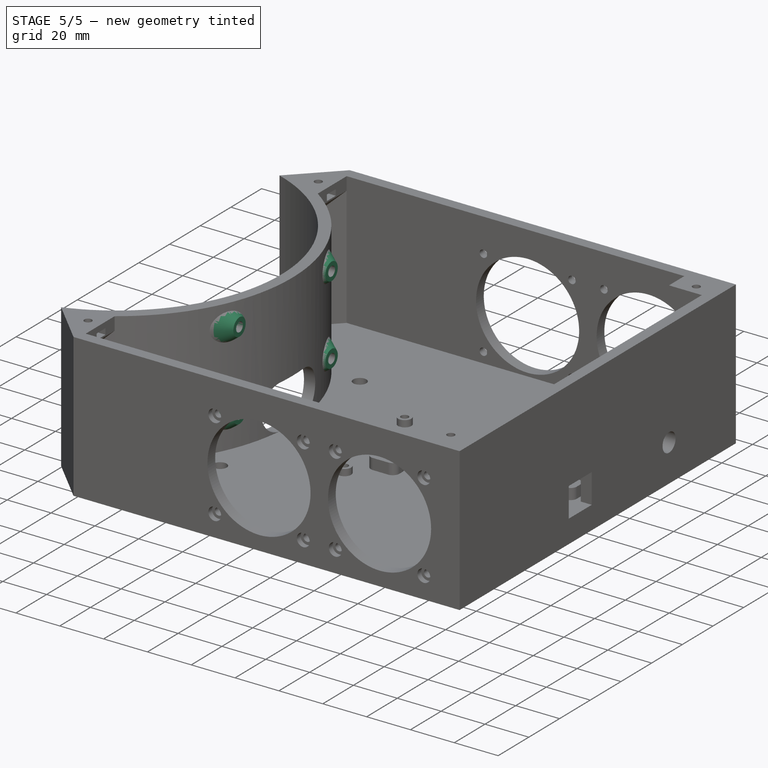
[diagram: stage 5 of 5 — iso view after this stage's code; geometry added in this stage tinted green]
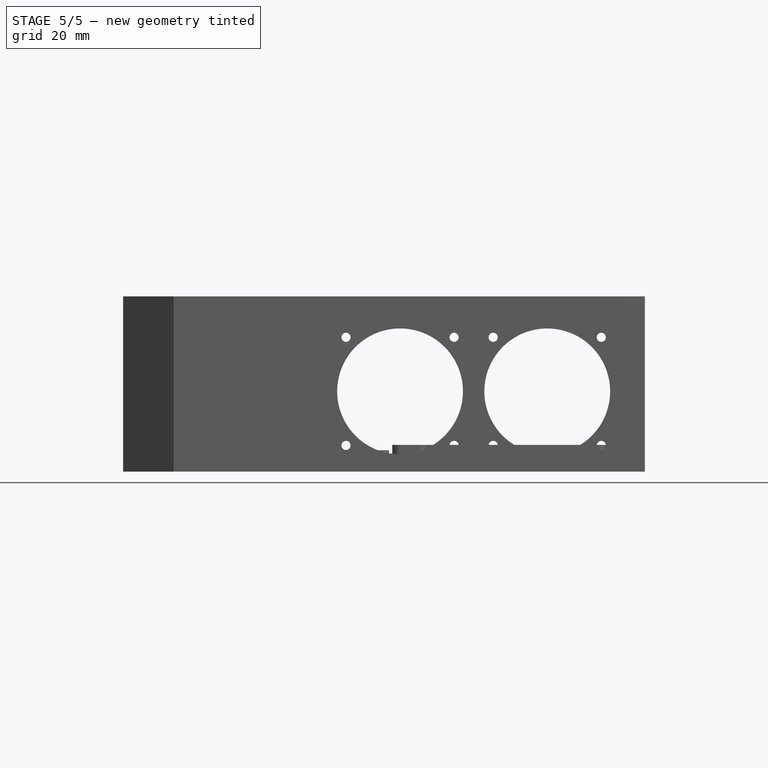
[diagram: stage 5 of 5 — front view after this stage's code; geometry added in this stage tinted green]
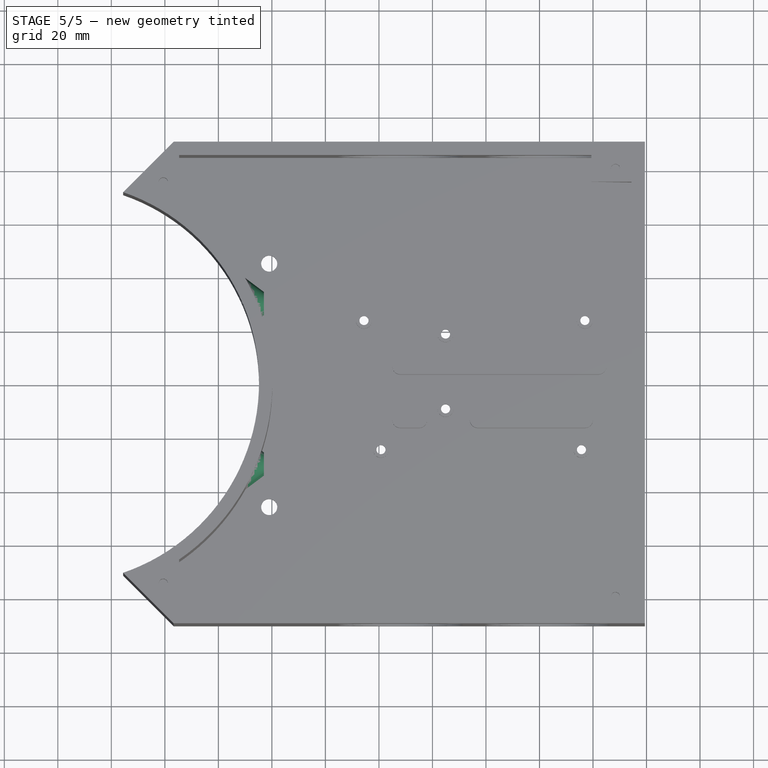
[diagram: stage 5 of 5 — top view after this stage's code; geometry added in this stage tinted green]
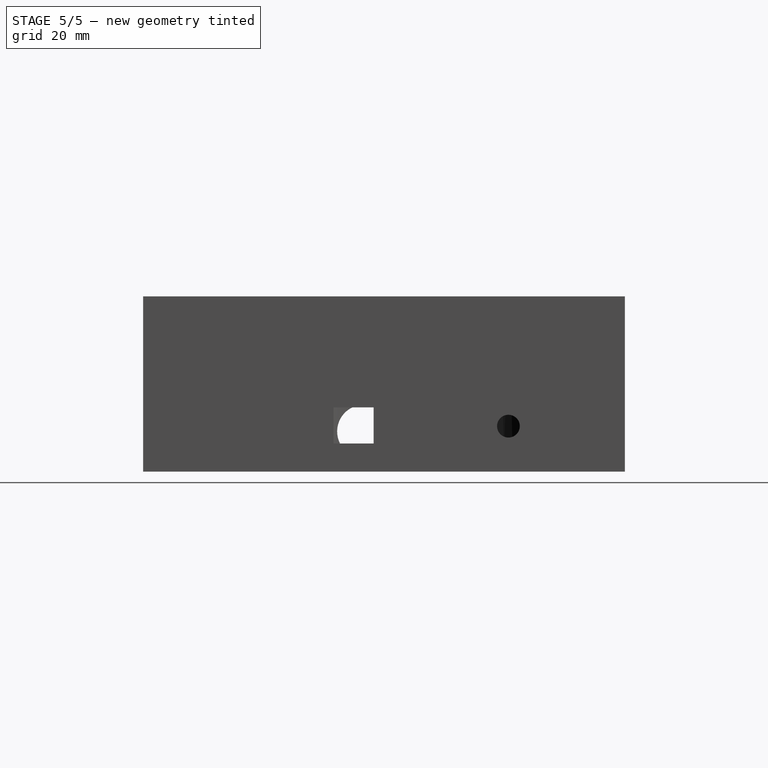
[diagram: stage 5 of 5 — right view after this stage's code; geometry added in this stage tinted green]
FEATURE [Sketcher::SketchObject] Sketch019
  FullyConstrained = true
  MapMode = 5
  Placement = pos=(0,0,0) rot=(1,0,0;1.5708rad)
  Support = -> [XZ_Plane001]
  sketch-geometry (4):
    g0: LineSegment StartX=0 StartY=0 StartZ=0 EndX=0 EndY=4 EndZ=0
    g1: LineSegment StartX=0 StartY=4 StartZ=0 EndX=-8 EndY=10 EndZ=0
    g2: LineSegment StartX=-8 StartY=10 StartZ=0 EndX=-8 EndY=0 EndZ=0
    g3: LineSegment StartX=-8 StartY=0 StartZ=0 EndX=0 EndY=0 EndZ=0
  constraints (11):
    c: PointOnObject(g0,g-2)
    c: Coincident(g0,g1)
    c: Coincident(g1,g2)
    c: Vertical(g2)
    c: DistanceY(g-1,g0) = 4
    c: Coincident(g0,g-1)
    c: Coincident(g3,g2)
    c: Horizontal(g3)
    c: Coincident(g3,g0)
    c: DistanceY(g2,g2) = 10
    c: DistanceX(g3,g3) = 8
FEATURE [PartDesign::Revolution] Revolution001
  Angle = 360
  Axis = (1,0,0)
  Base = (0,0,0)
  Placement = pos=(0,0,0) rot=(1,0,0;1.5708rad)
  Profile = -> Sketch019
  ReferenceAxis = -> Sketch019 [H_Axis]
  Refine = true
FEATURE [PartDesign::Body] Body001
  Group = -> [Sketch019,Revolution001]
  Origin = -> Origin001
  Placement = pos=(-60,30,19.75) rot=(0,0,1;0rad)
  Tip = -> Revolution001
FEATURE [Part::FeaturePython] Array  # Draft array (typed FeaturePython)
  Angle = 360
  ArrayType = 0
  Axis = (0,0,1)
  Base = -> Body001
  Center = (0,0,0)
  Count = 4
  ExpandArray = false
  Fuse = false
  IntervalAxis = (0,0,0)
  IntervalX = (100,-60,32)
  IntervalY = (0,-60,0)
  IntervalZ = (0,0,36)
  NumberCircles = 3
  NumberPolar = 5
  NumberX = 1
  NumberY = 2
  NumberZ = 2
  Placement = pos=(137,0,0) rot=(0,0,1;0rad)
  PlacementList = 4 placements: [(-60,30,19.75),(-60,30,55.75),(-60,-30,19.75),(-60,-30,55.75)]
  RadialDistance = 50
  ScaleList = (4) [(1,1,1),(1,1,1),(1,1,1),(1,1,1)]
  Symmetry = 1
  TangentialDistance = 25
FEATURE [Part::Cut] Cut
  Base = -> Array
  Refine = true
  Tool = -> Cylinder
FEATURE [PartDesign::ShapeBinder] CopyFusion
  Placement = pos=(77,-30,55.75) rot=(0,0,1;0rad)
  TraceSupport = false
FEATURE [Sketcher::SketchObject] Sketch022
  FullyConstrained = true
  MapMode = 5
  Placement = pos=(77,-30,55.75) rot=(0.57735,0.57735,0.57735;2.0944rad)
  Support = -> [CopyFusion]
FEATURE [PartDesign::Body] Body
  Group = -> [Sketch,Pad,Thickness,Sketch001,Pocket,Sketch002,Pocket001,Sketch003,Pocket002,Mirrored,Sketch004,Pad001,Draft,Mirrored001,Sketch005,Pad002,Sketch006,Pocket003,DatumPlane,Sketch007,Pocket004,MultiTransform,Mirrored002,Sketch008,Pad003,Fillet,Sketch009,Pad004,Sketch010,Pocket005,Sketch011,Pocket006,Sketch012,Pocket007,Sketch013,Pocket008,Sketch020,Pocket009,DatumPlane001,Sketch021,Pocket010,+3 more]
  Origin = -> Origin
  Tip = -> Mirrored003
FEATURE [Part::MultiFuse] Fusion
  Refine = true
  Shapes = -> [Body,Cut]
FEATURE [PartDesign::FeatureBase] BaseFeature
  BaseFeature = -> Fusion
FEATURE [Sketcher::SketchObject] Sketch023
  ExternalGeometry = -> [BaseFeature]
  FullyConstrained = true
  MapMode = 5
  Placement = pos=(77,0,0) rot=(0.57735,0.57735,0.57735;2.0944rad)
  Support = -> [BaseFeature]
  expr: Constraints[7] = Spreadsheet.M4BoltBodyRadius
  sketch-geometry (4):
    g0: Circle CenterX=-30 CenterY=55.75 CenterZ=0 NormalX=0 NormalY=0 NormalZ=1 AngleXU=0 Radius=2.2
    g1: Circle CenterX=-30 CenterY=19.75 CenterZ=0 NormalX=0 NormalY=0 NormalZ=1 AngleXU=0 Radius=2.2
    g2: Circle CenterX=30 CenterY=19.75 CenterZ=0 NormalX=0 NormalY=0 NormalZ=1 AngleXU=0 Radius=2.2
    g3: Circle CenterX=30 CenterY=55.75 CenterZ=0 NormalX=0 NormalY=0 NormalZ=1 AngleXU=0 Radius=2.2
  constraints (8):
    c: Coincident(g0,g-6)
    c: Coincident(g1,g-5)
    c: Coincident(g2,g-4)
    c: Coincident(g3,g-3)
    c: Equal(g3,g2)
    c: Equal(g2,g1)
    c: Equal(g1,g0)
    c: Radius(g0) = 2.2
FEATURE [PartDesign::Pocket] Pocket011
  BaseFeature = -> BaseFeature
  Length = 5
  Length2 = 100
  Profile = -> Sketch023
  Refine = true
  Type = 1
FEATURE [PartDesign::CoordinateSystem] LCS_Bot
  AttacherType = Attacher::AttachEngine3D
FEATURE [PartDesign::CoordinateSystem] LCS_Top
  AttacherType = Attacher::AttachEngine3D
  MapMode = 45
  Placement = pos=(123.9,-8e-15,65.5) rot=(0,0,1;1.5708rad)
  Support = -> [Pocket011]
FEATURE [PartDesign::CoordinateSystem] LCS_Fan1
  AttacherType = Attacher::AttachEngine3D
  MapMode = 45
  Placement = pos=(127.9,-85,30) rot=(0,0.707107,0.707107;3.14159rad)
  Support = -> [Pocket011]
FEATURE [PartDesign::CoordinateSystem] LCS_Fan2
  AttacherType = Attacher::AttachEngine3D
  MapMode = 45
  Placement = pos=(182.9,-85,30) rot=(0,0.707107,0.707107;3.14159rad)
  Support = -> [Pocket011]
FEATURE [PartDesign::CoordinateSystem] LCS_Fan3
  AttacherType = Attacher::AttachEngine3D
  MapMode = 45
  Placement = pos=(127.9,85,30) rot=(0,0.707107,0.707107;3.14159rad)
  Support = -> [Pocket011]
FEATURE [PartDesign::CoordinateSystem] LCS_Fan4
  AttacherType = Attacher::AttachEngine3D
  MapMode = 45
  Placement = pos=(182.9,85,30) rot=(0,0.707107,0.707107;3.14159rad)
  Support = -> [Pocket011]
FEATURE [PartDesign::CoordinateSystem] LCS_Arduino
  AttacherType = Attacher::AttachEngine3D
  MapMode = 45
  Placement = pos=(156.962,0.04805,8) rot=(0,0,1;1.53936rad)
  Support = -> [Pocket011]
FEATURE [PartDesign::CoordinateSystem] LCS_DCJAck  label="LCS_JackDC"
  AttacherType = Attacher::AttachEngine3D
  MapMode = 11
  Placement = pos=(219.4,46.5,17) rot=(0.707107,0,0.707107;3.14159rad)
  Support = -> [Pocket011]
FEATURE [PartDesign::Line] HoleAxis_1
  AttacherType = Attacher::AttachEngineLine
  Length = 4.79083
  MapMode = 19
  Placement = pos=(39.4,-75,60.15) rot=(0,0,1;0rad)
  ResizeMode = 1
  Support = -> [Pocket011]
FEATURE [PartDesign::Line] HoleAxis_2
  AttacherType = Attacher::AttachEngineLine
  Length = 6.1999
  MapMode = 19
  Placement = pos=(77,-30,55.75) rot=(0.57735,0.57735,0.57735;2.0944rad)
  ResizeMode = 1
  Support = -> [Pocket011]
FEATURE [PartDesign::Line] HoleAxis_3
  AttacherType = Attacher::AttachEngineLine
  Length = 6.1999
  MapMode = 19
  Placement = pos=(77,-30,19.75) rot=(0.57735,0.57735,0.57735;2.0944rad)
  ResizeMode = 1
  Support = -> [Pocket011]
FEATURE [PartDesign::Line] HoleAxis_4
  AttacherType = Attacher::AttachEngineLine
  Length = 6.1999
  MapMode = 19
  Placement = pos=(77,30,55.75) rot=(0.57735,0.57735,0.57735;2.0944rad)
  ResizeMode = 1
  Support = -> [Pocket011]
FEATURE [PartDesign::Line] HoleAxis_5
  AttacherType = Attacher::AttachEngineLine
  Length = 6.1999
  MapMode = 19
  Placement = pos=(77,30,19.75) rot=(0.57735,0.57735,0.57735;2.0944rad)
  ResizeMode = 1
  Support = -> [Pocket011]
FEATURE [PartDesign::Line] HoleAxis_6
  AttacherType = Attacher::AttachEngineLine
  Length = 4.79083
  MapMode = 19
  Placement = pos=(39.4,75,60.15) rot=(0,0,1;0rad)
  ResizeMode = 1
  Support = -> [Pocket011]
FEATURE [PartDesign::Line] HoleAxis_7
  AttacherType = Attacher::AttachEngineLine
  Length = 4.79083
  MapMode = 19
  Placement = pos=(107.7,-87.5,50.2) rot=(0,0.707107,0.707107;3.14159rad)
  ResizeMode = 1
  Support = -> [Pocket011]
FEATURE [PartDesign::Line] HoleAxis_8
  AttacherType = Attacher::AttachEngineLine
  Length = 4.79083
  MapMode = 19
  Placement = pos=(148.1,-87.5,50.2) rot=(0,0.707107,0.707107;3.14159rad)
  ResizeMode = 1
  Support = -> [Pocket011]
FEATURE [PartDesign::Line] HoleAxis_9
  AttacherType = Attacher::AttachEngineLine
  Length = 4.79083
  MapMode = 19
  Placement = pos=(162.7,-87.5,50.2) rot=(0,0.707107,0.707107;3.14159rad)
  ResizeMode = 1
  Support = -> [Pocket011]
FEATURE [PartDesign::Line] HoleAxis_10
  AttacherType = Attacher::AttachEngineLine
  Length = 4.79083
  MapMode = 19
  Placement = pos=(203.1,-87.5,50.2) rot=(0,0.707107,0.707107;3.14159rad)
  ResizeMode = 1
  Support = -> [Pocket011]
FEATURE [PartDesign::Line] HoleAxis_11
  AttacherType = Attacher::AttachEngineLine
  Length = 4.79083
  MapMode = 19
  Placement = pos=(203.1,-87.5,9.8) rot=(0,0.707107,0.707107;3.14159rad)
  ResizeMode = 1
  Support = -> [Pocket011]
FEATURE [PartDesign::Line] HoleAxis_12
  AttacherType = Attacher::AttachEngineLine
  Length = 4.79083
  MapMode = 19
  Placement = pos=(162.7,-87.5,9.8) rot=(0,0.707107,0.707107;3.14159rad)
  ResizeMode = 1
  Support = -> [Pocket011]
FEATURE [PartDesign::Line] HoleAxis_13
  AttacherType = Attacher::AttachEngineLine
  Length = 4.79083
  MapMode = 19
  Placement = pos=(148.1,-87.5,9.8) rot=(0,0.707107,0.707107;3.14159rad)
  ResizeMode = 1
  Support = -> [Pocket011]
FEATURE [PartDesign::Line] HoleAxis_14
  AttacherType = Attacher::AttachEngineLine
  Length = 4.79083
  MapMode = 19
  Placement = pos=(107.7,-87.5,9.8) rot=(0,0.707107,0.707107;3.14159rad)
  ResizeMode = 1
  Support = -> [Pocket011]
FEATURE [PartDesign::Line] HoleAxis_15
  AttacherType = Attacher::AttachEngineLine
  Length = 4.79083
  MapMode = 19
  Placement = pos=(203.1,87.5,50.2) rot=(0,0.707107,0.707107;3.14159rad)
  ResizeMode = 1
  Support = -> [Pocket011]
FEATURE [PartDesign::Line] HoleAxis_16
  AttacherType = Attacher::AttachEngineLine
  Length = 4.79083
  MapMode = 19
  Placement = pos=(203.1,87.5,9.8) rot=(0,0.707107,0.707107;3.14159rad)
  ResizeMode = 1
  Support = -> [Pocket011]
FEATURE [PartDesign::Line] HoleAxis_17
  AttacherType = Attacher::AttachEngineLine
  Length = 4.79083
  MapMode = 19
  Placement = pos=(162.7,87.5,9.8) rot=(0,0.707107,0.707107;3.14159rad)
  ResizeMode = 1
  Support = -> [Pocket011]
FEATURE [PartDesign::Line] HoleAxis_18
  AttacherType = Attacher::AttachEngineLine
  Length = 4.79083
  MapMode = 19
  Placement = pos=(162.7,87.5,50.2) rot=(0,0.707107,0.707107;3.14159rad)
  ResizeMode = 1
  Support = -> [Pocket011]
FEATURE [PartDesign::Line] HoleAxis_19
  AttacherType = Attacher::AttachEngineLine
  Length = 4.79083
  MapMode = 19
  Placement = pos=(148.1,87.5,50.2) rot=(0,0.707107,0.707107;3.14159rad)
  ResizeMode = 1
  Support = -> [Pocket011]
FEATURE [PartDesign::Line] HoleAxis_20
  AttacherType = Attacher::AttachEngineLine
  Length = 4.79083
  MapMode = 19
  Placement = pos=(148.1,87.5,9.8) rot=(0,0.707107,0.707107;3.14159rad)
  ResizeMode = 1
  Support = -> [Pocket011]
FEATURE [PartDesign::Line] HoleAxis_21
  AttacherType = Attacher::AttachEngineLine
  Length = 4.79083
  MapMode = 19
  Placement = pos=(107.7,87.5,50.2) rot=(0,0.707107,0.707107;3.14159rad)
  ResizeMode = 1
  Support = -> [Pocket011]
FEATURE [PartDesign::Line] HoleAxis_22
  AttacherType = Attacher::AttachEngineLine
  Length = 4.79083
  MapMode = 19
  Placement = pos=(107.7,87.5,9.8) rot=(0,0.707107,0.707107;3.14159rad)
  ResizeMode = 1
  Support = -> [Pocket011]
FEATURE [PartDesign::Line] HoleAxis_23
  AttacherType = Attacher::AttachEngineLine
  Length = 4.79083
  MapMode = 19
  Placement = pos=(120.766,-24.084,4) rot=(0,0,1;0rad)
  ResizeMode = 1
  Support = -> [Pocket011]
FEATURE [PartDesign::Line] HoleAxis_24
  AttacherType = Attacher::AttachEngineLine
  Length = 4.79083
  MapMode = 19
  Placement = pos=(114.42,24.1801,4) rot=(0,0,1;0rad)
  ResizeMode = 1
  Support = -> [Pocket011]
FEATURE [PartDesign::Line] HoleAxis_25
  AttacherType = Attacher::AttachEngineLine
  Length = 4.79083
  MapMode = 19
  Placement = pos=(144.9,19.1,4) rot=(0,0,1;0rad)
  ResizeMode = 1
  Support = -> [Pocket011]
FEATURE [PartDesign::Line] HoleAxis_26
  AttacherType = Attacher::AttachEngineLine
  Length = 4.79083
  MapMode = 19
  Placement = pos=(144.9,-8.844,4) rot=(0,0,1;0rad)
  ResizeMode = 1
  Support = -> [Pocket011]
FEATURE [PartDesign::Line] HoleAxis_27
  AttacherType = Attacher::AttachEngineLine
  Length = 4.79083
  MapMode = 19
  Placement = pos=(195.696,-24.084,4) rot=(0,0,1;0rad)
  ResizeMode = 1
  Support = -> [Pocket011]
FEATURE [PartDesign::Line] HoleAxis_28
  AttacherType = Attacher::AttachEngineLine
  Length = 4.79083
  MapMode = 19
  Placement = pos=(196.966,24.1801,4) rot=(0,0,1;0rad)
  ResizeMode = 1
  Support = -> [Pocket011]
FEATURE [PartDesign::Body] Body002  label="BaseBoxBody"
  BaseFeature = -> Fusion
  Group = -> [BaseFeature,Sketch023,Pocket011,LCS_Bot,LCS_Top,LCS_Fan1,LCS_Fan2,LCS_Fan3,LCS_Fan4,LCS_Arduino,LCS_DCJAck,HoleAxis_1,HoleAxis_2,HoleAxis_3,HoleAxis_4,HoleAxis_5,HoleAxis_6,HoleAxis_7,HoleAxis_8,HoleAxis_9,HoleAxis_10,HoleAxis_11,HoleAxis_12,HoleAxis_13,HoleAxis_14,HoleAxis_15,HoleAxis_16,HoleAxis_17,HoleAxis_18,HoleAxis_19,HoleAxis_20,HoleAxis_21,HoleAxis_22,HoleAxis_23,HoleAxis_24,HoleAxis_25,+3 more]
  Origin = -> Origin002
  Tip = -> Pocket011
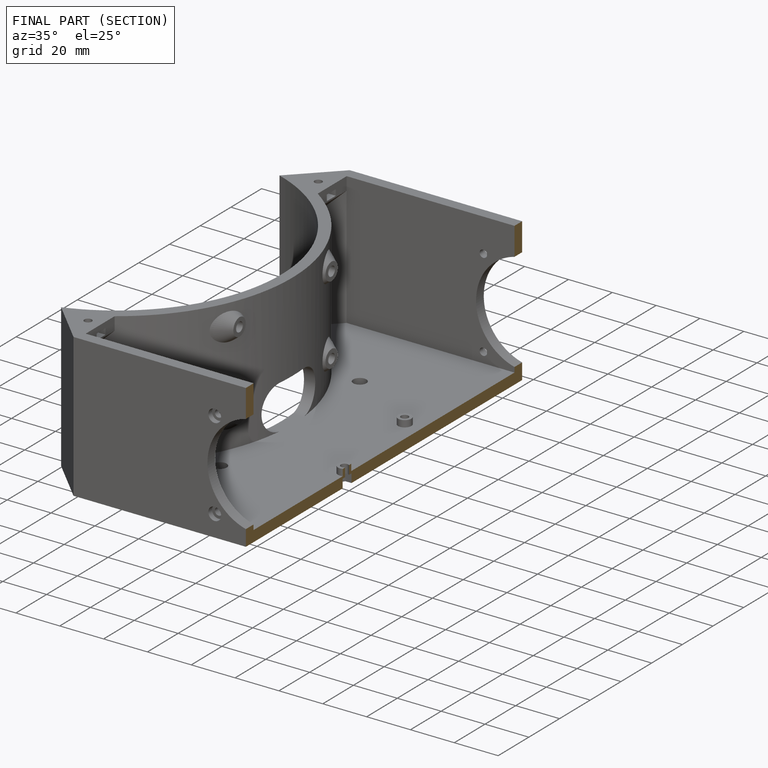
[diagram: finished part — half-section view (interior)]
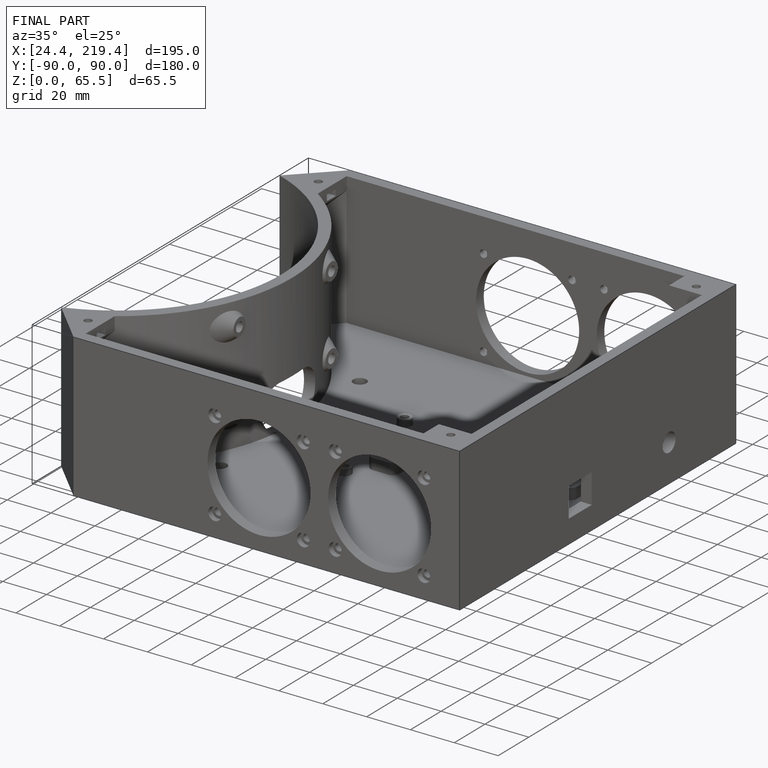
[diagram: finished part — iso view with bounding-box wireframe]
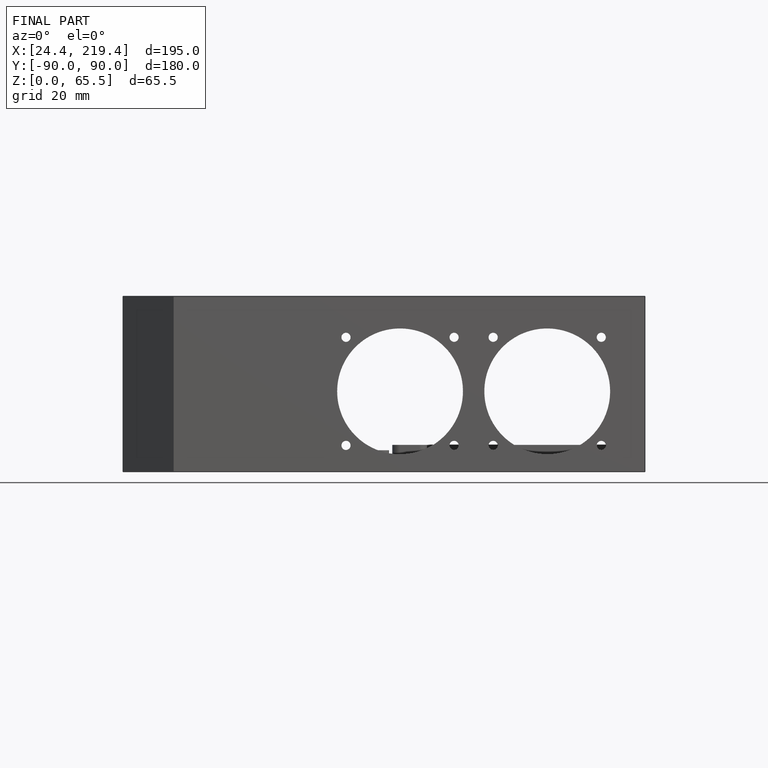
[diagram: finished part — front view with bounding-box wireframe]
